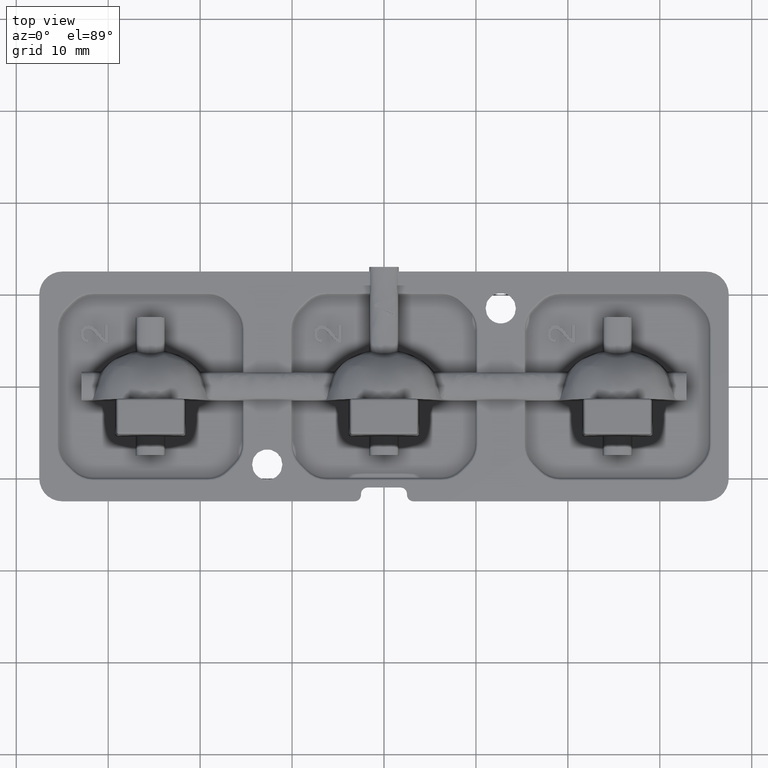
[diagram: clean part render]
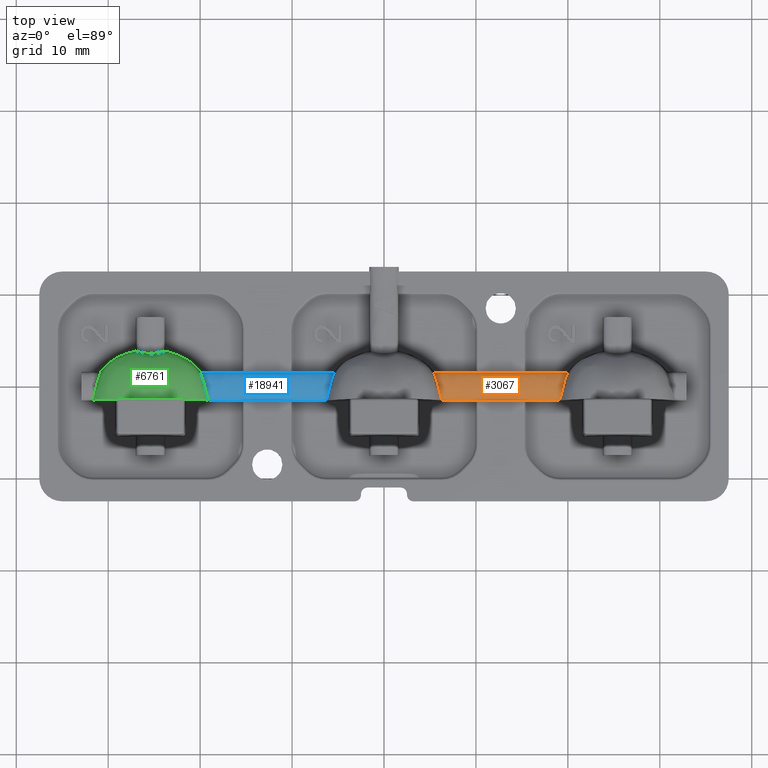
[diagram: same view with three faces highlighted in distinct colors, each labeled with its STEP entity id]
A machine part, top view with three faces highlighted in distinct colors.
Their STEP definitions:

[orange] entity #3067 — the highlighted face is a freeform B-spline surface patch.
#86 = VERTEX_POINT ( 'NONE', #2967 ) ;
#174 = DIRECTION ( 'NONE',  ( -1.000000000000000000, -0.0000000000000000000, -0.0000000000000000000 ) ) ;
#871 = CARTESIAN_POINT ( 'NONE',  ( 3.653922138680719900, 1.524601638501778400, 1.499999999999999600 ) ) ;
#887 = VERTEX_POINT ( 'NONE', #14251 ) ;
#947 = CARTESIAN_POINT ( 'NONE',  ( 19.65656536786151400, 0.5895181590230996700, 1.947486503973804300 ) ) ;
#1033 = ORIENTED_EDGE ( 'NONE', *, *, #1914, .T. ) ;
#1115 = EDGE_CURVE ( 'NONE', #9557, #11573, #5954, .T. ) ;
#1172 = CARTESIAN_POINT ( 'NONE',  ( 5.414469513541949800, 1.524601638501778400, 1.499999999999999600 ) ) ;
#1276 = DIRECTION ( 'NONE',  ( -1.000000000000000000, -0.0000000000000000000, -0.0000000000000000000 ) ) ;
#1289 = CARTESIAN_POINT ( 'NONE',  ( 5.964053167475407600, -0.2220048884489155000, 1.985488526488035500 ) ) ;
#1627 = VECTOR ( 'NONE', #5912, 1000.000000000000000 ) ;
#1680 = CARTESIAN_POINT ( 'NONE',  ( 15.15151733829874200, 1.524601638501772900, 1.499999999999999600 ) ) ;
#1805 = B_SPLINE_CURVE_WITH_KNOTS ( 'NONE', 3,
 ( #9960, #17349, #2459, #13026, #3973, #14518, #5504, #9940, #947, #11465, #2437, #13007, #3949, #14500, #5479, #16019, #7004, #17532, #8517, #19043 ),
 .UNSPECIFIED., .F., .F.,
 ( 4, 2, 2, 2, 2, 2, 2, 2, 2, 4 ),
 ( 0.0000000000000000000, 0.0002139943856301423600, 0.0004279887712602847200, 0.0008559775425205691100, 0.001283966313780853600, 0.001711955085041137800, 0.002567932627561706800, 0.002995921398821991000, 0.003209915784452133700, 0.003423910170082275600 ),
 .UNSPECIFIED. ) ;
#1914 = EDGE_CURVE ( 'NONE', #4106, #887, #16552, .T. ) ;
#1934 = VECTOR ( 'NONE', #1276, 1000.000000000000000 ) ;
#2282 = CARTESIAN_POINT ( 'NONE',  ( 3.750000000000000000, 1.524601638501778400, 1.499999999999999600 ) ) ;
#2391 = LINE ( 'NONE', #2282, #17949 ) ;
#2437 = CARTESIAN_POINT ( 'NONE',  ( 19.53961601237000100, 0.1849684196236254200, 1.981321568496105200 ) ) ;
#2459 = CARTESIAN_POINT ( 'NONE',  ( 19.97505224733269800, 1.458383871728608600, 1.626834290782926700 ) ) ;
#2783 = CARTESIAN_POINT ( 'NONE',  ( 6.116780467316360200, -0.9021937582455242800, 1.891220023313538100 ) ) ;
#2967 = CARTESIAN_POINT ( 'NONE',  ( 3.787130078820408300, -1.524601638501760200, 1.499999999999999600 ) ) ;
#2989 = ORIENTED_EDGE ( 'NONE', *, *, #14724, .F. ) ;
#3029 = EDGE_CURVE ( 'NONE', #10256, #5476, #17245, .T. ) ;
#3067 = ADVANCED_FACE ( 'NONE', ( #8753 ), #4547, .T. ) ;
#3117 = DIRECTION ( 'NONE',  ( -1.000000000000000000, 0.0000000000000000000, -0.0000000000000000000 ) ) ;
#3265 = CARTESIAN_POINT ( 'NONE',  ( 21.61286992117960500, -1.524601638501740900, 1.500000000000077700 ) ) ;
#3389 = CARTESIAN_POINT ( 'NONE',  ( 3.773666992456431700, -1.505274297071526500, 1.553152110517723500 ) ) ;
#3881 = CARTESIAN_POINT ( 'NONE',  ( 3.653922138680719900, 1.352055608433418300, 2.143950550859384600 ) ) ;
#3949 = CARTESIAN_POINT ( 'NONE',  ( 19.37679489031154000, -0.4951974929644437600, 1.967918489597050300 ) ) ;
#3968 = B_SPLINE_CURVE_WITH_KNOTS ( 'NONE', 3,
 ( #1172, #11752, #4249, #14790, #5777, #16312, #7295, #17818, #8793, #19321, #10292, #1289, #11813, #2783, #13358, #4311, #14856, #5835, #16379, #7359 ),
 .UNSPECIFIED., .F., .F.,
 ( 4, 2, 2, 2, 2, 2, 2, 2, 2, 4 ),
 ( 0.0000000000000000000, 0.0002139943720760033500, 0.0004279887441520066900, 0.0008559774883040126300, 0.001283966232456018500, 0.001711954976608024400, 0.002567932464912035300, 0.002995921209064041600, 0.003209915581140043900, 0.003423909953216046600 ),
 .UNSPECIFIED. ) ;
#3973 = CARTESIAN_POINT ( 'NONE',  ( 19.91256383863446500, 1.293915821677028800, 1.748309408361048900 ) ) ;
#4106 = VERTEX_POINT ( 'NONE', #5417 ) ;
#4191 = VECTOR ( 'NONE', #9744, 1000.000000000000000 ) ;
#4249 = CARTESIAN_POINT ( 'NONE',  ( 5.424948624773477100, 1.458383888776498400, 1.626834267193905800 ) ) ;
#4311 = CARTESIAN_POINT ( 'NONE',  ( 6.203213377940209700, -1.227710751850440200, 1.781236614138192100 ) ) ;
#4387 = VERTEX_POINT ( 'NONE', #9143 ) ;
#4547 = B_SPLINE_SURFACE_WITH_KNOTS ( 'NONE', 3, 1, ( 
 ( #871, #6874 ),
 ( #3881, #14426 ),
 ( #5408, #15944 ),
 ( #6936, #17458 ) ),
 .UNSPECIFIED., .F., .F., .F.,
 ( 4, 4 ),
 ( 2, 2 ),
 ( 0.0000000000000000000, 1.000000000000000000 ),
 ( 0.0000000000000000000, 1.000000000000000000 ),
 .UNSPECIFIED. ) ;
#4789 = CARTESIAN_POINT ( 'NONE',  ( 21.62633300750653800, -1.505274297119057600, 1.553152110548016200 ) ) ;
#4918 = CARTESIAN_POINT ( 'NONE',  ( 3.781797684177358800, -1.517096371113945400, 1.528010039215734700 ) ) ;
#5408 = CARTESIAN_POINT ( 'NONE',  ( 3.653922138680719900, -1.352055608433400100, 2.143950550859410300 ) ) ;
#5417 = CARTESIAN_POINT ( 'NONE',  ( 21.61286992117960500, -1.524601638501740900, 1.500000000000077700 ) ) ;
#5476 = VERTEX_POINT ( 'NONE', #10417 ) ;
#5479 = CARTESIAN_POINT ( 'NONE',  ( 19.25132031257472300, -1.037019171486277100, 1.857266239554109100 ) ) ;
#5504 = CARTESIAN_POINT ( 'NONE',  ( 19.79151932266119800, 0.9841393963611795300, 1.870239141411243800 ) ) ;
#5777 = CARTESIAN_POINT ( 'NONE',  ( 5.487437321359941200, 1.293915935721297000, 1.748309344732775800 ) ) ;
#5810 = VERTEX_POINT ( 'NONE', #18986 ) ;
#5835 = CARTESIAN_POINT ( 'NONE',  ( 6.265899244320362300, -1.403608291540709500, 1.676947497062739800 ) ) ;
#5912 = DIRECTION ( 'NONE',  ( -1.000000000000000000, 0.0000000000000000000, -0.0000000000000000000 ) ) ;
#5954 = LINE ( 'NONE', #8844, #1934 ) ;
#6616 = LINE ( 'NONE', #11891, #1627 ) ;
#6808 = CARTESIAN_POINT ( 'NONE',  ( 10.24848266170126500, -1.524601638501769300, 1.499999999999999800 ) ) ;
#6874 = CARTESIAN_POINT ( 'NONE',  ( 21.74607786131933200, 1.524601638501778400, 1.499999999999999600 ) ) ;
#6936 = CARTESIAN_POINT ( 'NONE',  ( 3.653922138680719900, -1.524601638501767100, 1.499999999999996200 ) ) ;
#7004 = CARTESIAN_POINT ( 'NONE',  ( 19.17722850351422900, -1.290070179759911000, 1.751292583161140100 ) ) ;
#7070 = VERTEX_POINT ( 'NONE', #1680 ) ;
#7180 = LINE ( 'NONE', #16173, #10215 ) ;
#7295 = CARTESIAN_POINT ( 'NONE',  ( 5.608482213186751300, 0.9841396524413038600, 1.870239069585320200 ) ) ;
#7359 = CARTESIAN_POINT ( 'NONE',  ( 6.316275789860277700, -1.491086363426563600, 1.575758493744677100 ) ) ;
#7662 = LINE ( 'NONE', #12143, #15194 ) ;
#7910 = CARTESIAN_POINT ( 'NONE',  ( 3.761187884071860200, -1.491086363426563600, 1.575758493744677100 ) ) ;
#8147 = EDGE_CURVE ( 'NONE', #5810, #887, #8205, .T. ) ;
#8205 = LINE ( 'NONE', #15813, #4191 ) ;
#8517 = CARTESIAN_POINT ( 'NONE',  ( 19.11006068101268700, -1.455726409393350200, 1.632099373868087100 ) ) ;
#8536 = ORIENTED_EDGE ( 'NONE', *, *, #3029, .T. ) ;
#8753 = FACE_OUTER_BOUND ( 'NONE', #11291, .T. ) ;
#8793 = CARTESIAN_POINT ( 'NONE',  ( 5.743436392226406900, 0.5895185313647370900, 1.947486454590498400 ) ) ;
#8844 = CARTESIAN_POINT ( 'NONE',  ( 18.19999999999999900, -1.524601638501770200, 1.499999999999996200 ) ) ;
#9143 = CARTESIAN_POINT ( 'NONE',  ( 19.98553113320984700, 1.524601638501756000, 1.500000000000001300 ) ) ;
#9352 = ORIENTED_EDGE ( 'NONE', *, *, #18425, .T. ) ;
#9557 = VERTEX_POINT ( 'NONE', #12004 ) ;
#9740 = CARTESIAN_POINT ( 'NONE',  ( 6.316275789860277700, -1.491086363426563600, 1.575758493744677100 ) ) ;
#9744 = DIRECTION ( 'NONE',  ( 1.000000000000000000, -0.0000000000000000000, 0.0000000000000000000 ) ) ;
#9940 = CARTESIAN_POINT ( 'NONE',  ( 19.69996300319656900, 0.7237318960017827800, 1.927655294654934300 ) ) ;
#9960 = CARTESIAN_POINT ( 'NONE',  ( 19.98553113320984700, 1.524601638501756000, 1.500000000000001300 ) ) ;
#10116 = ORIENTED_EDGE ( 'NONE', *, *, #10363, .T. ) ;
#10148 = VERTEX_POINT ( 'NONE', #18383 ) ;
#10215 = VECTOR ( 'NONE', #17681, 1000.000000000000000 ) ;
#10256 = VERTEX_POINT ( 'NONE', #16653 ) ;
#10292 = CARTESIAN_POINT ( 'NONE',  ( 5.860385738222452000, 0.1849687869180197400, 1.981321554772345500 ) ) ;
#10356 = LINE ( 'NONE', #18232, #13906 ) ;
#10363 = EDGE_CURVE ( 'NONE', #5476, #86, #12952, .T. ) ;
#10417 = CARTESIAN_POINT ( 'NONE',  ( 3.761187884071860200, -1.491086363426563600, 1.575758493744677100 ) ) ;
#10438 = CARTESIAN_POINT ( 'NONE',  ( 10.24848266170126500, 1.524601638501772900, 1.499999999999999600 ) ) ;
#10735 = EDGE_CURVE ( 'NONE', #4106, #9557, #7662, .T. ) ;
#11291 = EDGE_LOOP ( 'NONE', ( #12054, #14053, #16383, #1033, #18968, #2989, #15788, #17596, #11964, #9352, #8536, #10116 ) ) ;
#11465 = CARTESIAN_POINT ( 'NONE',  ( 19.57646703969149400, 0.3202222892640367900, 1.974329617557848600 ) ) ;
#11573 = VERTEX_POINT ( 'NONE', #6808 ) ;
#11752 = CARTESIAN_POINT ( 'NONE',  ( 5.409784369708869000, 1.505872409881255900, 1.569898432798357800 ) ) ;
#11813 = CARTESIAN_POINT ( 'NONE',  ( 6.023206354770724000, -0.4951972257385914300, 1.967918522145420500 ) ) ;
#11891 = CARTESIAN_POINT ( 'NONE',  ( 21.64999999999999900, 1.524601638501756000, 1.500000000000001300 ) ) ;
#11964 = ORIENTED_EDGE ( 'NONE', *, *, #14979, .F. ) ;
#12004 = CARTESIAN_POINT ( 'NONE',  ( 15.15151733829874200, -1.524601638501769300, 1.499999999999999800 ) ) ;
#12054 = ORIENTED_EDGE ( 'NONE', *, *, #13402, .T. ) ;
#12143 = CARTESIAN_POINT ( 'NONE',  ( 21.64999999999999900, -1.524601638501740900, 1.500000000000077700 ) ) ;
#12303 = CARTESIAN_POINT ( 'NONE',  ( 21.61820231582328200, -1.517096371113072300, 1.528010039219618100 ) ) ;
#12853 = DIRECTION ( 'NONE',  ( 1.000000000000000000, 0.0000000000000000000, 0.0000000000000000000 ) ) ;
#12952 = B_SPLINE_CURVE_WITH_KNOTS ( 'NONE', 3,
 ( #7910, #3389, #4918, #15457 ),
 .UNSPECIFIED., .F., .F.,
 ( 4, 4 ),
 ( 1.091485052657850200E-014, 8.680795187133092700E-005 ),
 .UNSPECIFIED. ) ;
#13007 = CARTESIAN_POINT ( 'NONE',  ( 19.43594837415427900, -0.2220052136313302700, 1.985488509892516800 ) ) ;
#13026 = CARTESIAN_POINT ( 'NONE',  ( 19.93617244576676500, 1.352512862672114100, 1.715119931344462900 ) ) ;
#13358 = CARTESIAN_POINT ( 'NONE',  ( 6.148680177436049600, -1.037019048745244600, 1.857266279423572600 ) ) ;
#13402 = EDGE_CURVE ( 'NONE', #86, #11573, #7180, .T. ) ;
#13702 = VECTOR ( 'NONE', #18842, 1000.000000000000000 ) ;
#13906 = VECTOR ( 'NONE', #174, 1000.000000000000000 ) ;
#14053 = ORIENTED_EDGE ( 'NONE', *, *, #1115, .F. ) ;
#14251 = CARTESIAN_POINT ( 'NONE',  ( 21.63881211592819300, -1.491086363426100200, 1.575758493757720500 ) ) ;
#14426 = CARTESIAN_POINT ( 'NONE',  ( 21.74607786131933200, 1.352055608433418300, 2.143950550859384600 ) ) ;
#14500 = CARTESIAN_POINT ( 'NONE',  ( 19.28322022596803400, -0.9021939125982897400, 1.891219985321763500 ) ) ;
#14518 = CARTESIAN_POINT ( 'NONE',  ( 19.84029818834991200, 1.111227689894713500, 1.833885583468202000 ) ) ;
#14724 = EDGE_CURVE ( 'NONE', #4387, #5810, #1805, .T. ) ;
#14790 = CARTESIAN_POINT ( 'NONE',  ( 5.463828628831289600, 1.352512933043093800, 1.715119882035176100 ) ) ;
#14856 = CARTESIAN_POINT ( 'NONE',  ( 6.222771635474574100, -1.290070139159798000, 1.751292606104908600 ) ) ;
#14979 = EDGE_CURVE ( 'NONE', #10148, #16266, #2391, .T. ) ;
#15194 = VECTOR ( 'NONE', #3117, 1000.000000000000000 ) ;
#15328 = CARTESIAN_POINT ( 'NONE',  ( 21.63881211592819300, -1.491086363426100200, 1.575758493757720500 ) ) ;
#15457 = CARTESIAN_POINT ( 'NONE',  ( 3.787130078820408300, -1.524601638501760200, 1.499999999999999600 ) ) ;
#15788 = ORIENTED_EDGE ( 'NONE', *, *, #16648, .T. ) ;
#15813 = CARTESIAN_POINT ( 'NONE',  ( 21.58177077738795200, -1.491086363426100200, 1.575758493757720500 ) ) ;
#15944 = CARTESIAN_POINT ( 'NONE',  ( 21.74607786131933200, -1.352055608433400100, 2.143950550859410300 ) ) ;
#16019 = CARTESIAN_POINT ( 'NONE',  ( 19.19678684493336400, -1.227710812401518100, 1.781236585463698900 ) ) ;
#16173 = CARTESIAN_POINT ( 'NONE',  ( 3.750000000000000000, -1.524601638501760200, 1.499999999999999600 ) ) ;
#16266 = VERTEX_POINT ( 'NONE', #10438 ) ;
#16312 = CARTESIAN_POINT ( 'NONE',  ( 5.559703220899822700, 1.111227890628435000, 1.833885509852675800 ) ) ;
#16365 = EDGE_CURVE ( 'NONE', #7070, #16266, #10356, .T. ) ;
#16379 = CARTESIAN_POINT ( 'NONE',  ( 6.289939267016605700, -1.455726406299300300, 1.632099378796961100 ) ) ;
#16383 = ORIENTED_EDGE ( 'NONE', *, *, #10735, .F. ) ;
#16552 = B_SPLINE_CURVE_WITH_KNOTS ( 'NONE', 3,
 ( #3265, #12303, #4789, #15328 ),
 .UNSPECIFIED., .F., .F.,
 ( 4, 4 ),
 ( 0.0000000000000000000, 8.680795187191260100E-005 ),
 .UNSPECIFIED. ) ;
#16648 = EDGE_CURVE ( 'NONE', #4387, #7070, #6616, .T. ) ;
#16653 = CARTESIAN_POINT ( 'NONE',  ( 6.316275789860277700, -1.491086363426563600, 1.575758493744677100 ) ) ;
#17245 = LINE ( 'NONE', #9740, #13702 ) ;
#17349 = CARTESIAN_POINT ( 'NONE',  ( 19.99021638430014400, 1.505872411085102700, 1.569898428305462400 ) ) ;
#17458 = CARTESIAN_POINT ( 'NONE',  ( 21.74607786131933200, -1.524601638501767100, 1.499999999999996200 ) ) ;
#17532 = CARTESIAN_POINT ( 'NONE',  ( 19.13410075598085000, -1.403608306006736400, 1.676947483951114000 ) ) ;
#17596 = ORIENTED_EDGE ( 'NONE', *, *, #16365, .T. ) ;
#17681 = DIRECTION ( 'NONE',  ( 1.000000000000000000, 0.0000000000000000000, 0.0000000000000000000 ) ) ;
#17818 = CARTESIAN_POINT ( 'NONE',  ( 5.700038708036889700, 0.7237322390370275500, 1.927655234384315400 ) ) ;
#17949 = VECTOR ( 'NONE', #12853, 1000.000000000000000 ) ;
#18232 = CARTESIAN_POINT ( 'NONE',  ( 18.19999999999999900, 1.524601638501772900, 1.499999999999999600 ) ) ;
#18383 = CARTESIAN_POINT ( 'NONE',  ( 5.414469513541949800, 1.524601638501778400, 1.499999999999999600 ) ) ;
#18425 = EDGE_CURVE ( 'NONE', #10148, #10256, #3968, .T. ) ;
#18842 = DIRECTION ( 'NONE',  ( -1.000000000000000000, -0.0000000000000000000, -0.0000000000000000000 ) ) ;
#18968 = ORIENTED_EDGE ( 'NONE', *, *, #8147, .F. ) ;
#18986 = CARTESIAN_POINT ( 'NONE',  ( 19.08372413429644600, -1.491086363426523500, 1.575758493745534000 ) ) ;
#19043 = CARTESIAN_POINT ( 'NONE',  ( 19.08372413429644600, -1.491086363426523500, 1.575758493745534000 ) ) ;
#19321 = CARTESIAN_POINT ( 'NONE',  ( 5.823534742817433800, 0.3202226634157145400, 1.974329592531104800 ) ) ;

[blue] entity #18941 — the highlighted face is a freeform B-spline surface patch.
#44 = VERTEX_POINT ( 'NONE', #2837 ) ;
#196 = CARTESIAN_POINT ( 'NONE',  ( -5.559701811650086300, 1.111227689894708200, 1.833885583468201500 ) ) ;
#263 = CARTESIAN_POINT ( 'NONE',  ( -6.289939318987311600, -1.455726409393355300, 1.632099373868087800 ) ) ;
#468 = VERTEX_POINT ( 'NONE', #19501 ) ;
#544 = EDGE_CURVE ( 'NONE', #7188, #10452, #8107, .T. ) ;
#938 = CARTESIAN_POINT ( 'NONE',  ( -19.53961426177754400, 0.1849687869180152200, 1.981321554772344600 ) ) ;
#987 = B_SPLINE_CURVE_WITH_KNOTS ( 'NONE', 3,
 ( #18944, #3854, #15983, #6968 ),
 .UNSPECIFIED., .F., .F.,
 ( 4, 4 ),
 ( 0.0000000000000000000, 8.680795187191299400E-005 ),
 .UNSPECIFIED. ) ;
#1575 = CARTESIAN_POINT ( 'NONE',  ( -3.653922138680668000, 1.352055608433412500, 2.143950550859384600 ) ) ;
#1630 = CARTESIAN_POINT ( 'NONE',  ( -19.98553048645805000, 1.524601638501772700, 1.499999999999999600 ) ) ;
#1647 = CARTESIAN_POINT ( 'NONE',  ( -5.409783615699858200, 1.505872411085097600, 1.569898428305462400 ) ) ;
#1689 = B_SPLINE_CURVE_WITH_KNOTS ( 'NONE', 3,
 ( #18469, #7948, #1922, #12478 ),
 .UNSPECIFIED., .F., .F.,
 ( 4, 4 ),
 ( 1.091472093641729700E-014, 8.680795187133053400E-005 ),
 .UNSPECIFIED. ) ;
#1715 = CARTESIAN_POINT ( 'NONE',  ( -5.700036996803437900, 0.7237318960017774500, 1.927655294654934600 ) ) ;
#1858 = EDGE_CURVE ( 'NONE', #44, #7735, #15858, .T. ) ;
#1865 = CARTESIAN_POINT ( 'NONE',  ( -3.750000000000000000, 1.524601638501750700, 1.500000000000001300 ) ) ;
#1922 = CARTESIAN_POINT ( 'NONE',  ( -21.61820231582264300, -1.517096371113951100, 1.528010039215734500 ) ) ;
#2310 = VECTOR ( 'NONE', #15188, 1000.000000000000000 ) ;
#2366 = CARTESIAN_POINT ( 'NONE',  ( -19.98553048645805000, 1.524601638501772700, 1.499999999999999600 ) ) ;
#2429 = CARTESIAN_POINT ( 'NONE',  ( -19.37679364522928100, -0.4951972257385968100, 1.967918522145420500 ) ) ;
#2545 = VECTOR ( 'NONE', #9987, 1000.000000000000000 ) ;
#2773 = LINE ( 'NONE', #9176, #2310 ) ;
#2837 = CARTESIAN_POINT ( 'NONE',  ( -6.316275865703553400, -1.491086363426528800, 1.575758493745534000 ) ) ;
#3055 = VECTOR ( 'NONE', #14128, 1000.000000000000000 ) ;
#3080 = CARTESIAN_POINT ( 'NONE',  ( -3.653922138680668000, -1.352055608433405700, 2.143950550859410300 ) ) ;
#3113 = CARTESIAN_POINT ( 'NONE',  ( -21.64999999999999900, -1.524601638501765800, 1.499999999999999600 ) ) ;
#3228 = CARTESIAN_POINT ( 'NONE',  ( -5.823532960308506600, 0.3202222892640309600, 1.974329617557848600 ) ) ;
#3299 = VERTEX_POINT ( 'NONE', #7516 ) ;
#3403 = DIRECTION ( 'NONE',  ( -1.000000000000000000, -0.0000000000000000000, -0.0000000000000000000 ) ) ;
#3559 = EDGE_CURVE ( 'NONE', #6031, #10452, #7107, .T. ) ;
#3854 = CARTESIAN_POINT ( 'NONE',  ( -3.781797684176716200, -1.517096371113077600, 1.528010039219618300 ) ) ;
#3942 = CARTESIAN_POINT ( 'NONE',  ( -19.25131982256394300, -1.037019048745249300, 1.857266279423573000 ) ) ;
#4541 = CARTESIAN_POINT ( 'NONE',  ( -3.653922138680668000, 1.524601638501772700, 1.499999999999999600 ) ) ;
#4609 = CARTESIAN_POINT ( 'NONE',  ( -3.653922138680668000, -1.524601638501772700, 1.499999999999996200 ) ) ;
#4752 = CARTESIAN_POINT ( 'NONE',  ( -5.964051625845725000, -0.2220052136313359600, 1.985488509892516800 ) ) ;
#4821 = B_SPLINE_CURVE_WITH_KNOTS ( 'NONE', 3,
 ( #2366, #11326, #14423, #5403, #15942, #6934, #17454, #8445, #18970, #9932, #938, #11455, #2429, #12999, #3942, #14489, #5473, #16011, #6992, #17523 ),
 .UNSPECIFIED., .F., .F.,
 ( 4, 2, 2, 2, 2, 2, 2, 2, 2, 4 ),
 ( 0.0000000000000000000, 0.0002139943720760010400, 0.0004279887441520020900, 0.0008559774883040079700, 0.001283966232456014000, 0.001711954976608019800, 0.002567932464912031800, 0.002995921209064039000, 0.003209915581140042600, 0.003423909953216045700 ),
 .UNSPECIFIED. ) ;
#5137 = EDGE_CURVE ( 'NONE', #15259, #44, #8109, .T. ) ;
#5181 = VERTEX_POINT ( 'NONE', #18458 ) ;
#5403 = CARTESIAN_POINT ( 'NONE',  ( -19.93617137116870800, 1.352512933043086300, 1.715119882035177400 ) ) ;
#5473 = CARTESIAN_POINT ( 'NONE',  ( -19.17722836452542600, -1.290070139159802000, 1.751292606104908600 ) ) ;
#6031 = VERTEX_POINT ( 'NONE', #12394 ) ;
#6220 = CARTESIAN_POINT ( 'NONE',  ( -5.414468866790151900, 1.524601638501750700, 1.500000000000001300 ) ) ;
#6287 = CARTESIAN_POINT ( 'NONE',  ( -6.116779774031973800, -0.9021939125982941800, 1.891219985321763700 ) ) ;
#6934 = CARTESIAN_POINT ( 'NONE',  ( -19.84029677910017900, 1.111227890628429900, 1.833885509852674500 ) ) ;
#6968 = CARTESIAN_POINT ( 'NONE',  ( -3.761187884071804700, -1.491086363426105600, 1.575758493757720500 ) ) ;
#6989 = VERTEX_POINT ( 'NONE', #15064 ) ;
#6992 = CARTESIAN_POINT ( 'NONE',  ( -19.11006073298339600, -1.455726406299304300, 1.632099378796962900 ) ) ;
#7107 = LINE ( 'NONE', #18622, #3055 ) ;
#7188 = VERTEX_POINT ( 'NONE', #17166 ) ;
#7516 = CARTESIAN_POINT ( 'NONE',  ( -15.15151733829873800, 1.524601638501745300, 1.499999999999999800 ) ) ;
#7552 = ORIENTED_EDGE ( 'NONE', *, *, #11649, .T. ) ;
#7598 = EDGE_CURVE ( 'NONE', #468, #3299, #2773, .T. ) ;
#7729 = CARTESIAN_POINT ( 'NONE',  ( -5.424947752667286200, 1.458383871728602000, 1.626834290782927200 ) ) ;
#7735 = VERTEX_POINT ( 'NONE', #10944 ) ;
#7807 = CARTESIAN_POINT ( 'NONE',  ( -6.203213155066635800, -1.227710812401522800, 1.781236585463700000 ) ) ;
#7942 = CARTESIAN_POINT ( 'NONE',  ( -3.787130078820394100, -1.524601638501746200, 1.500000000000077700 ) ) ;
#7948 = CARTESIAN_POINT ( 'NONE',  ( -21.62633300754356800, -1.505274297071532000, 1.553152110517723500 ) ) ;
#7953 = LINE ( 'NONE', #12446, #15473 ) ;
#8064 = VERTEX_POINT ( 'NONE', #7942 ) ;
#8107 = LINE ( 'NONE', #3113, #9029 ) ;
#8109 = B_SPLINE_CURVE_WITH_KNOTS ( 'NONE', 3,
 ( #6220, #1647, #7729, #18257, #9222, #196, #10732, #1715, #12259, #3228, #13775, #4752, #15294, #6287, #16821, #7807, #18326, #9289, #263, #10796 ),
 .UNSPECIFIED., .F., .F.,
 ( 4, 2, 2, 2, 2, 2, 2, 2, 2, 4 ),
 ( 0.0000000000000000000, 0.0002139943856301414900, 0.0004279887712602829800, 0.0008559775425205677000, 0.001283966313780852100, 0.001711955085041136500, 0.002567932627561705500, 0.002995921398821990500, 0.003209915784452133300, 0.003423910170082276000 ),
 .UNSPECIFIED. ) ;
#8231 = CARTESIAN_POINT ( 'NONE',  ( -3.750000000000000000, -1.524601638501746200, 1.500000000000077700 ) ) ;
#8445 = CARTESIAN_POINT ( 'NONE',  ( -19.69996129196311700, 0.7237322390370224400, 1.927655234384315400 ) ) ;
#8687 = B_SPLINE_SURFACE_WITH_KNOTS ( 'NONE', 3, 1, ( 
 ( #9087, #4541 ),
 ( #10586, #1575 ),
 ( #12119, #3080 ),
 ( #13633, #4609 ) ),
 .UNSPECIFIED., .F., .F., .F.,
 ( 4, 4 ),
 ( 2, 2 ),
 ( 0.0000000000000000000, 1.000000000000000000 ),
 ( 0.0000000000000000000, 1.000000000000000000 ),
 .UNSPECIFIED. ) ;
#9029 = VECTOR ( 'NONE', #12082, 1000.000000000000000 ) ;
#9087 = CARTESIAN_POINT ( 'NONE',  ( -21.74607786131927900, 1.524601638501772700, 1.499999999999999600 ) ) ;
#9176 = CARTESIAN_POINT ( 'NONE',  ( -7.200000000000002000, 1.524601638501744900, 1.500000000000001300 ) ) ;
#9189 = EDGE_CURVE ( 'NONE', #5181, #6989, #7953, .T. ) ;
#9222 = CARTESIAN_POINT ( 'NONE',  ( -5.487436161365534000, 1.293915821677022600, 1.748309408361049100 ) ) ;
#9284 = EDGE_CURVE ( 'NONE', #8064, #6031, #18532, .T. ) ;
#9289 = CARTESIAN_POINT ( 'NONE',  ( -6.265899244019149900, -1.403608306006743200, 1.676947483951112900 ) ) ;
#9526 = ORIENTED_EDGE ( 'NONE', *, *, #7598, .T. ) ;
#9577 = CARTESIAN_POINT ( 'NONE',  ( -15.15151733829873800, -1.524601638501771100, 1.499999999999999800 ) ) ;
#9673 = LINE ( 'NONE', #1865, #17238 ) ;
#9860 = ORIENTED_EDGE ( 'NONE', *, *, #18526, .T. ) ;
#9932 = CARTESIAN_POINT ( 'NONE',  ( -19.57646525718257300, 0.3202226634157083800, 1.974329592531106600 ) ) ;
#9987 = DIRECTION ( 'NONE',  ( 1.000000000000000000, 0.0000000000000000000, 0.0000000000000000000 ) ) ;
#10011 = EDGE_LOOP ( 'NONE', ( #15533, #10418, #15039, #18281, #15106, #11419, #14172, #9526, #18743, #7552, #13672, #9860 ) ) ;
#10418 = ORIENTED_EDGE ( 'NONE', *, *, #3559, .F. ) ;
#10452 = VERTEX_POINT ( 'NONE', #9577 ) ;
#10532 = EDGE_CURVE ( 'NONE', #8064, #7735, #987, .T. ) ;
#10586 = CARTESIAN_POINT ( 'NONE',  ( -21.74607786131927900, 1.352055608433412500, 2.143950550859384600 ) ) ;
#10732 = CARTESIAN_POINT ( 'NONE',  ( -5.608480677338803000, 0.9841393963611743100, 1.870239141411243800 ) ) ;
#10796 = CARTESIAN_POINT ( 'NONE',  ( -6.316275865703553400, -1.491086363426528800, 1.575758493745534000 ) ) ;
#10944 = CARTESIAN_POINT ( 'NONE',  ( -3.761187884071804700, -1.491086363426105600, 1.575758493757720500 ) ) ;
#11326 = CARTESIAN_POINT ( 'NONE',  ( -19.99021563029113200, 1.505872409881250400, 1.569898432798358300 ) ) ;
#11419 = ORIENTED_EDGE ( 'NONE', *, *, #5137, .F. ) ;
#11455 = CARTESIAN_POINT ( 'NONE',  ( -19.43594683252460000, -0.2220048884489207500, 1.985488526488036000 ) ) ;
#11649 = EDGE_CURVE ( 'NONE', #17512, #5181, #4821, .T. ) ;
#11838 = VECTOR ( 'NONE', #12230, 1000.000000000000000 ) ;
#12082 = DIRECTION ( 'NONE',  ( 1.000000000000000000, 0.0000000000000000000, 0.0000000000000000000 ) ) ;
#12119 = CARTESIAN_POINT ( 'NONE',  ( -21.74607786131927900, -1.352055608433405700, 2.143950550859410300 ) ) ;
#12230 = DIRECTION ( 'NONE',  ( 1.000000000000000000, -0.0000000000000000000, 0.0000000000000000000 ) ) ;
#12259 = CARTESIAN_POINT ( 'NONE',  ( -5.743434632138487000, 0.5895181590230943500, 1.947486503973803900 ) ) ;
#12394 = CARTESIAN_POINT ( 'NONE',  ( -10.24848266170126500, -1.524601638501771100, 1.499999999999999800 ) ) ;
#12446 = CARTESIAN_POINT ( 'NONE',  ( -19.08372421013972100, -1.491086363426569200, 1.575758493744677100 ) ) ;
#12478 = CARTESIAN_POINT ( 'NONE',  ( -21.61286992117959100, -1.524601638501765800, 1.499999999999999600 ) ) ;
#12784 = DIRECTION ( 'NONE',  ( -1.000000000000000000, 0.0000000000000000000, -0.0000000000000000000 ) ) ;
#12999 = CARTESIAN_POINT ( 'NONE',  ( -19.28321953268364600, -0.9021937582455309400, 1.891220023313538800 ) ) ;
#13380 = FACE_OUTER_BOUND ( 'NONE', #10011, .T. ) ;
#13633 = CARTESIAN_POINT ( 'NONE',  ( -21.74607786131927900, -1.524601638501772700, 1.499999999999996200 ) ) ;
#13672 = ORIENTED_EDGE ( 'NONE', *, *, #9189, .T. ) ;
#13775 = CARTESIAN_POINT ( 'NONE',  ( -5.860383987630001500, 0.1849684196236200100, 1.981321568496105200 ) ) ;
#14128 = DIRECTION ( 'NONE',  ( -1.000000000000000000, -0.0000000000000000000, -0.0000000000000000000 ) ) ;
#14172 = ORIENTED_EDGE ( 'NONE', *, *, #15407, .T. ) ;
#14423 = CARTESIAN_POINT ( 'NONE',  ( -19.97505137522652100, 1.458383888776491500, 1.626834267193907100 ) ) ;
#14489 = CARTESIAN_POINT ( 'NONE',  ( -19.19678662205979000, -1.227710751850444900, 1.781236614138192800 ) ) ;
#15039 = ORIENTED_EDGE ( 'NONE', *, *, #9284, .F. ) ;
#15056 = CARTESIAN_POINT ( 'NONE',  ( -5.414468866790151900, 1.524601638501750700, 1.500000000000001300 ) ) ;
#15064 = CARTESIAN_POINT ( 'NONE',  ( -21.63881211592814000, -1.491086363426569200, 1.575758493744677100 ) ) ;
#15106 = ORIENTED_EDGE ( 'NONE', *, *, #1858, .F. ) ;
#15188 = DIRECTION ( 'NONE',  ( -1.000000000000000000, -0.0000000000000000000, -0.0000000000000000000 ) ) ;
#15259 = VERTEX_POINT ( 'NONE', #15056 ) ;
#15294 = CARTESIAN_POINT ( 'NONE',  ( -6.023205109688462700, -0.4951974929644500400, 1.967918489597050300 ) ) ;
#15407 = EDGE_CURVE ( 'NONE', #15259, #468, #9673, .T. ) ;
#15447 = DIRECTION ( 'NONE',  ( -1.000000000000000000, 0.0000000000000000000, -0.0000000000000000000 ) ) ;
#15473 = VECTOR ( 'NONE', #3403, 1000.000000000000000 ) ;
#15533 = ORIENTED_EDGE ( 'NONE', *, *, #544, .T. ) ;
#15858 = LINE ( 'NONE', #16724, #11838 ) ;
#15942 = CARTESIAN_POINT ( 'NONE',  ( -19.91256267864005400, 1.293915935721291500, 1.748309344732774200 ) ) ;
#15983 = CARTESIAN_POINT ( 'NONE',  ( -3.773666992493459800, -1.505274297119063100, 1.553152110548015900 ) ) ;
#16011 = CARTESIAN_POINT ( 'NONE',  ( -19.13410075567963600, -1.403608291540714000, 1.676947497062740000 ) ) ;
#16724 = CARTESIAN_POINT ( 'NONE',  ( -3.818229222612046200, -1.491086363426105600, 1.575758493757720500 ) ) ;
#16821 = CARTESIAN_POINT ( 'NONE',  ( -6.148679687425284300, -1.037019171486279800, 1.857266239554110200 ) ) ;
#17166 = CARTESIAN_POINT ( 'NONE',  ( -21.61286992117959100, -1.524601638501765800, 1.499999999999999600 ) ) ;
#17238 = VECTOR ( 'NONE', #15447, 1000.000000000000000 ) ;
#17454 = CARTESIAN_POINT ( 'NONE',  ( -19.79151778681324500, 0.9841396524412997500, 1.870239069585319700 ) ) ;
#17511 = CARTESIAN_POINT ( 'NONE',  ( -21.64999999999999900, 1.524601638501772700, 1.499999999999999600 ) ) ;
#17512 = VERTEX_POINT ( 'NONE', #1630 ) ;
#17523 = CARTESIAN_POINT ( 'NONE',  ( -19.08372421013972100, -1.491086363426569200, 1.575758493744677100 ) ) ;
#17852 = EDGE_CURVE ( 'NONE', #17512, #3299, #18101, .T. ) ;
#18057 = VECTOR ( 'NONE', #12784, 1000.000000000000000 ) ;
#18101 = LINE ( 'NONE', #17511, #2545 ) ;
#18257 = CARTESIAN_POINT ( 'NONE',  ( -5.463827554233224000, 1.352512862672107900, 1.715119931344462900 ) ) ;
#18281 = ORIENTED_EDGE ( 'NONE', *, *, #10532, .T. ) ;
#18326 = CARTESIAN_POINT ( 'NONE',  ( -6.222771496485774100, -1.290070179759917700, 1.751292583161138300 ) ) ;
#18458 = CARTESIAN_POINT ( 'NONE',  ( -19.08372421013972100, -1.491086363426569200, 1.575758493744677100 ) ) ;
#18469 = CARTESIAN_POINT ( 'NONE',  ( -21.63881211592814000, -1.491086363426569200, 1.575758493744677100 ) ) ;
#18526 = EDGE_CURVE ( 'NONE', #6989, #7188, #1689, .T. ) ;
#18532 = LINE ( 'NONE', #8231, #18057 ) ;
#18622 = CARTESIAN_POINT ( 'NONE',  ( -7.200000000000002000, -1.524601638501752000, 1.500000000000072400 ) ) ;
#18743 = ORIENTED_EDGE ( 'NONE', *, *, #17852, .F. ) ;
#18941 = ADVANCED_FACE ( 'NONE', ( #13380 ), #8687, .T. ) ;
#18944 = CARTESIAN_POINT ( 'NONE',  ( -3.787130078820394100, -1.524601638501746200, 1.500000000000077700 ) ) ;
#18970 = CARTESIAN_POINT ( 'NONE',  ( -19.65656360777359900, 0.5895185313647308700, 1.947486454590500200 ) ) ;
#19501 = CARTESIAN_POINT ( 'NONE',  ( -10.24848266170126500, 1.524601638501745600, 1.499999999999999800 ) ) ;

[green] entity #6761 — the highlighted face is a freeform B-spline surface patch.
#2 = CARTESIAN_POINT ( 'NONE',  ( -24.89395894191125800, 3.624242165508516400, 2.027821992209605500 ) ) ;
#67 = CARTESIAN_POINT ( 'NONE',  ( -24.91992680020177900, 3.948942922644111100, 1.398462165185068400 ) ) ;
#68 = CARTESIAN_POINT ( 'NONE',  ( -23.87539836149823500, 3.821385603054491900, 1.499999999999999600 ) ) ;
#120 = CARTESIAN_POINT ( 'NONE',  ( -24.95755852246159600, 4.000000000000003600, 1.151102993158579000 ) ) ;
#182 = CARTESIAN_POINT ( 'NONE',  ( -20.49296896323434700, -1.523727999071460100, 3.302194578899682900 ) ) ;
#250 = CARTESIAN_POINT ( 'NONE',  ( -19.71399409207196000, -1.484507391802468500, 2.598796270624429600 ) ) ;
#284 = CARTESIAN_POINT ( 'NONE',  ( -26.97803417895815800, 3.848237607877717600, 1.300587044239275100 ) ) ;
#317 = CARTESIAN_POINT ( 'NONE',  ( -19.09551381742610600, -1.442975859861292500, 1.741685539818849100 ) ) ;
#381 = CARTESIAN_POINT ( 'NONE',  ( -28.78907229201933800, 3.267213395043461900, 1.200000000000000200 ) ) ;
#474 = B_SPLINE_CURVE_WITH_KNOTS ( 'NONE', 3,
 ( #13973, #6433, #15499, #6499 ),
 .UNSPECIFIED., .F., .F.,
 ( 4, 4 ),
 ( 7.197199990208277700E-015, 3.151128537260655100E-005 ),
 .UNSPECIFIED. ) ;
#494 = CARTESIAN_POINT ( 'NONE',  ( -31.71627586570355100, -1.491086363426534600, 1.575758493745534000 ) ) ;
#607 = EDGE_CURVE ( 'NONE', #15000, #10564, #8235, .T. ) ;
#614 = CARTESIAN_POINT ( 'NONE',  ( -19.49315379346195000, -1.466551418009365500, 2.278347404995457300 ) ) ;
#662 = CARTESIAN_POINT ( 'NONE',  ( -18.89999999999999900, -1.399999999999998600, 1.050309705888033100 ) ) ;
#736 = CARTESIAN_POINT ( 'NONE',  ( -18.94720936065497300, -0.8603945385336486700, 0.6999999999999992900 ) ) ;
#791 = EDGE_CURVE ( 'NONE', #13368, #1460, #17776, .T. ) ;
#882 = CARTESIAN_POINT ( 'NONE',  ( -31.90764704947929400, -1.486336873834613700, 1.051284709645885100 ) ) ;
#938 = CARTESIAN_POINT ( 'NONE',  ( -19.53961426177754400, 0.1849687869180152200, 1.981321554772344600 ) ) ;
#953 = CARTESIAN_POINT ( 'NONE',  ( -31.70448352421854900, -1.442975859861292500, 1.741692411860271200 ) ) ;
#1022 = CARTESIAN_POINT ( 'NONE',  ( -31.08582097347562000, -1.399999999999998600, 2.601743972022247500 ) ) ;
#1030 = EDGE_CURVE ( 'NONE', #2018, #4409, #4834, .T. ) ;
#1061 = CARTESIAN_POINT ( 'NONE',  ( -30.81843654579932600, 1.604986396231113100, 1.199999999999999700 ) ) ;
#1081 = CARTESIAN_POINT ( 'NONE',  ( -30.31171863279161700, -0.8844666705355788100, 3.365858533414888100 ) ) ;
#1093 = CARTESIAN_POINT ( 'NONE',  ( -22.35378529810573100, 3.428007726646451900, 1.199999999999997500 ) ) ;
#1144 = CARTESIAN_POINT ( 'NONE',  ( -29.36131560536980000, 0.1089773046921635500, 3.943115365988066700 ) ) ;
#1156 = CARTESIAN_POINT ( 'NONE',  ( -23.94078202163840200, 3.799221690529343200, 1.626110595340802800 ) ) ;
#1204 = CARTESIAN_POINT ( 'NONE',  ( -28.23670619042914600, 1.146654066584471100, 3.998273992767687800 ) ) ;
#1214 = CARTESIAN_POINT ( 'NONE',  ( -26.36754574582949600, 3.702012310666085600, 1.874949115227845500 ) ) ;
#1265 = CARTESIAN_POINT ( 'NONE',  ( -27.17352339850652100, 1.752834273698558500, 3.813553798755278100 ) ) ;
#1325 = CARTESIAN_POINT ( 'NONE',  ( -26.15424784708598300, 2.768149050309164100, 3.041258309266197600 ) ) ;
#1333 = B_SPLINE_CURVE_WITH_KNOTS ( 'NONE', 3,
 ( #16155, #8584, #2566, #7133 ),
 .UNSPECIFIED., .F., .F.,
 ( 4, 4 ),
 ( 0.0000000000000000000, 0.0003106081914826854300 ),
 .UNSPECIFIED. ) ;
#1382 = CARTESIAN_POINT ( 'NONE',  ( -25.57296318542091000, 3.622831859225877700, 2.001422054282612400 ) ) ;
#1442 = CARTESIAN_POINT ( 'NONE',  ( -25.31518593332216200, 3.952655126956965000, 1.376693471674499800 ) ) ;
#1460 = VERTEX_POINT ( 'NONE', #3345 ) ;
#1478 = CARTESIAN_POINT ( 'NONE',  ( -31.42320510968845000, -0.4951974929644556400, 1.967918489597049800 ) ) ;
#1508 = CARTESIAN_POINT ( 'NONE',  ( -25.25129490170496600, 4.000000000000003600, 1.196900085809202500 ) ) ;
#1568 = CARTESIAN_POINT ( 'NONE',  ( -22.31608127883139000, -1.516795225054906600, 4.333288182517358100 ) ) ;
#1629 = CARTESIAN_POINT ( 'NONE',  ( -21.37108073083889100, -1.480174408042121700, 3.882605079446061600 ) ) ;
#1630 = CARTESIAN_POINT ( 'NONE',  ( -19.98553048645805000, 1.524601638501772700, 1.499999999999999600 ) ) ;
#1699 = CARTESIAN_POINT ( 'NONE',  ( -20.49236293991150900, -1.441242666357152300, 3.310408393395575500 ) ) ;
#1766 = CARTESIAN_POINT ( 'NONE',  ( -19.71417036555782700, -1.399999999999998600, 2.601733899431728900 ) ) ;
#1798 = CARTESIAN_POINT ( 'NONE',  ( -27.00498639623048900, 3.852590467018121700, 1.199999999998601500 ) ) ;
#1813 = B_SPLINE_CURVE_WITH_KNOTS ( 'NONE', 3,
 ( #2400, #11431, #3914, #14463 ),
 .UNSPECIFIED., .F., .F.,
 ( 4, 4 ),
 ( 0.0000000000000000000, 0.0003106081965305011100 ),
 .UNSPECIFIED. ) ;
#1824 = CARTESIAN_POINT ( 'NONE',  ( -30.58952395303385400, 1.903779314850425200, 1.200000000000009700 ) ) ;
#1832 = CARTESIAN_POINT ( 'NONE',  ( -19.12858080076339500, -0.8628017517338382200, 1.731093141559312500 ) ) ;
#1885 = CARTESIAN_POINT ( 'NONE',  ( -28.26873723113988000, 3.490794762622860100, 1.199999999999999300 ) ) ;
#1992 = CARTESIAN_POINT ( 'NONE',  ( -30.77460715844822300, -1.445443289056622900, 2.882805132013598100 ) ) ;
#2018 = VERTEX_POINT ( 'NONE', #17170 ) ;
#2042 = CARTESIAN_POINT ( 'NONE',  ( -21.60325432043092800, -1.406417858373490300, 4.000347249530389800 ) ) ;
#2080 = CARTESIAN_POINT ( 'NONE',  ( -28.90641341572343800, -1.401556075627169400, 4.139570491660664200 ) ) ;
#2105 = CARTESIAN_POINT ( 'NONE',  ( -19.22475707667323200, -1.480802052104113000, 1.870262637614799100 ) ) ;
#2161 = CARTESIAN_POINT ( 'NONE',  ( -19.14029629956982600, 0.1087194777457944900, 1.032090322290934600 ) ) ;
#2228 = CARTESIAN_POINT ( 'NONE',  ( -19.59011969612675900, 1.114658466028338500, 0.7000000000000009500 ) ) ;
#2311 = CARTESIAN_POINT ( 'NONE',  ( -31.90377674885239000, -1.443168436917309400, 0.6999999999999992900 ) ) ;
#2366 = CARTESIAN_POINT ( 'NONE',  ( -19.98553048645805000, 1.524601638501772700, 1.499999999999999600 ) ) ;
#2376 = CARTESIAN_POINT ( 'NONE',  ( -31.89999999999999900, -1.399999999999998600, 1.050312006427573300 ) ) ;
#2400 = CARTESIAN_POINT ( 'NONE',  ( -30.81843654579932600, 1.604986396231113100, 1.199999999999999700 ) ) ;
#2429 = CARTESIAN_POINT ( 'NONE',  ( -19.37679364522928100, -0.4951972257385968100, 1.967918522145420500 ) ) ;
#2442 = CARTESIAN_POINT ( 'NONE',  ( -31.67141712357278400, -0.8628017517338451000, 1.731097124696332300 ) ) ;
#2472 = CARTESIAN_POINT ( 'NONE',  ( -25.04968683532164100, -1.399999999999998600, 4.949999999999999300 ) ) ;
#2508 = CARTESIAN_POINT ( 'NONE',  ( -31.00016708174985800, 0.1087960201204968300, 2.608380134192557000 ) ) ;
#2566 = CARTESIAN_POINT ( 'NONE',  ( -19.97883214434060800, 1.551378784597095900, 1.400066330290569600 ) ) ;
#2569 = CARTESIAN_POINT ( 'NONE',  ( -30.00693186716853900, 1.129201920826584900, 3.217003445265261600 ) ) ;
#2578 = CARTESIAN_POINT ( 'NONE',  ( -21.34275626356972600, 2.903935679646786600, 1.199999999999999100 ) ) ;
#2632 = CARTESIAN_POINT ( 'NONE',  ( -28.91884631277443800, 1.750989323171518800, 3.480154502250988100 ) ) ;
#2645 = CARTESIAN_POINT ( 'NONE',  ( -24.10956836413138000, 3.768379432996841000, 1.750364844049080000 ) ) ;
#2696 = CARTESIAN_POINT ( 'NONE',  ( -27.63201613330098300, 2.793946526139394300, 3.095310969697826000 ) ) ;
#2706 = CARTESIAN_POINT ( 'NONE',  ( -26.69106098317729100, 3.768488791356735800, 1.749997594569821600 ) ) ;
#2755 = CARTESIAN_POINT ( 'NONE',  ( -26.38160474174868500, 3.629530814068401900, 2.098443967619840300 ) ) ;
#2817 = CARTESIAN_POINT ( 'NONE',  ( -25.64823651163357000, 3.951873610259525100, 1.383655916966354500 ) ) ;
#2862 = ORIENTED_EDGE ( 'NONE', *, *, #3473, .F. ) ;
#2884 = CARTESIAN_POINT ( 'NONE',  ( -25.44955301450995600, 4.000000000000003600, 1.199999999999982400 ) ) ;
#2946 = CARTESIAN_POINT ( 'NONE',  ( -24.34548571628086600, -1.511595644542493400, 4.880610832254754800 ) ) ;
#2983 = CARTESIAN_POINT ( 'NONE',  ( -31.54867968742528100, -1.037019171486286600, 1.857266239554110000 ) ) ;
#3012 = CARTESIAN_POINT ( 'NONE',  ( -23.31437012745559300, -1.475841424281775000, 4.676148126545095700 ) ) ;
#3074 = CARTESIAN_POINT ( 'NONE',  ( -22.31866324716195000, -1.438931741684974700, 4.345988019098318700 ) ) ;
#3145 = CARTESIAN_POINT ( 'NONE',  ( -21.37205860188871800, -1.399999999999998600, 3.893936154933304500 ) ) ;
#3209 = CARTESIAN_POINT ( 'NONE',  ( -20.48827228248237400, -0.8844666705355719300, 3.365851641242844700 ) ) ;
#3275 = CARTESIAN_POINT ( 'NONE',  ( -19.79983205208347000, 0.1087960201204968300, 2.608383188540347200 ) ) ;
#3292 = CARTESIAN_POINT ( 'NONE',  ( -23.84879241218832000, 3.839054168924736800, 1.400705245391811000 ) ) ;
#3311 = CARTESIAN_POINT ( 'NONE',  ( -26.95120758147025700, 3.839054035950915500, 1.400705269058311900 ) ) ;
#3345 = CARTESIAN_POINT ( 'NONE',  ( -28.90641341572343800, -1.401556075627169400, 4.139570491660664200 ) ) ;
#3397 = CARTESIAN_POINT ( 'NONE',  ( -27.37491811589590200, 3.777761634257217300, 1.200000000000000200 ) ) ;
#3473 = EDGE_CURVE ( 'NONE', #17881, #11480, #12184, .T. ) ;
#3512 = CARTESIAN_POINT ( 'NONE',  ( -30.02658191581478100, -1.424097491371546300, 3.494068801049028000 ) ) ;
#3564 = CARTESIAN_POINT ( 'NONE',  ( -21.89358658764983200, -1.401556075287330200, 4.139570501392260100 ) ) ;
#3613 = CARTESIAN_POINT ( 'NONE',  ( -19.69333509740212700, 1.116112811508161800, 1.641514037826993500 ) ) ;
#3631 = CARTESIAN_POINT ( 'NONE',  ( -19.08372421013972100, -1.491086363426569200, 1.575758493744677100 ) ) ;
#3681 = CARTESIAN_POINT ( 'NONE',  ( -20.03995144326978900, 1.748365393533062100, 0.9952081801950785100 ) ) ;
#3744 = CARTESIAN_POINT ( 'NONE',  ( -21.00461334010681500, 2.857007022613294600, 0.6999999999999992900 ) ) ;
#3828 = CARTESIAN_POINT ( 'NONE',  ( -31.85279063934502700, -0.8603945385336486700, 0.6999999999999992900 ) ) ;
#3892 = CARTESIAN_POINT ( 'NONE',  ( -31.65970370253364100, 0.1087194777457944900, 1.032089908944974900 ) ) ;
#3914 = CARTESIAN_POINT ( 'NONE',  ( -30.82116736222286900, 1.551378782755299600, 1.400066337164170400 ) ) ;
#3942 = CARTESIAN_POINT ( 'NONE',  ( -19.25131982256394300, -1.037019048745249300, 1.857266279423573000 ) ) ;
#3954 = CARTESIAN_POINT ( 'NONE',  ( -31.10666519080557500, 1.116112811508161800, 1.641506788942571800 ) ) ;
#4028 = CARTESIAN_POINT ( 'NONE',  ( -30.34190749642218800, 1.749144372644478900, 2.415931776386824200 ) ) ;
#4095 = CARTESIAN_POINT ( 'NONE',  ( -29.02315636659613000, 2.828343160579706300, 2.719454226992459300 ) ) ;
#4105 = CARTESIAN_POINT ( 'NONE',  ( -20.46282771245247600, 2.194121092429067500, 1.200000000000000400 ) ) ;
#4148 = ORIENTED_EDGE ( 'NONE', *, *, #1030, .F. ) ;
#4158 = CARTESIAN_POINT ( 'NONE',  ( -27.29079969547246900, 3.645396759748065200, 2.149342367169751400 ) ) ;
#4169 = CARTESIAN_POINT ( 'NONE',  ( -24.43462279092612400, 3.701547958430046600, 1.875478720847853400 ) ) ;
#4218 = CARTESIAN_POINT ( 'NONE',  ( -26.10281647857745200, 3.944839959982529500, 1.402488941930945000 ) ) ;
#4285 = CARTESIAN_POINT ( 'NONE',  ( -25.69653400781169600, 3.999999999999996400, 1.180801254078231100 ) ) ;
#4312 = ORIENTED_EDGE ( 'NONE', *, *, #607, .T. ) ;
#4344 = CARTESIAN_POINT ( 'NONE',  ( -25.75177032023034200, -1.511017913374441900, 4.930424546530130800 ) ) ;
#4404 = CARTESIAN_POINT ( 'NONE',  ( -25.04871224702053200, -1.474011942249629800, 4.936949697686754800 ) ) ;
#4409 = VERTEX_POINT ( 'NONE', #68 ) ;
#4439 = CARTESIAN_POINT ( 'NONE',  ( -30.86382755423321500, 1.352512862672100600, 1.715119931344464500 ) ) ;
#4449 = ORIENTED_EDGE ( 'NONE', *, *, #13593, .F. ) ;
#4470 = CARTESIAN_POINT ( 'NONE',  ( -24.34794354490037100, -1.437198548180834700, 4.893762687636353800 ) ) ;
#4507 = CARTESIAN_POINT ( 'NONE',  ( -31.62277149648575800, -1.290070179759924100, 1.751292583161139000 ) ) ;
#4537 = CARTESIAN_POINT ( 'NONE',  ( -23.31757796545826300, -1.399999999999998600, 4.689297514717985400 ) ) ;
#4572 = CARTESIAN_POINT ( 'NONE',  ( -21.92193114606676800, -1.399999999999998600, 4.153249892611767400 ) ) ;
#4604 = CARTESIAN_POINT ( 'NONE',  ( -22.33609153339321900, -0.9133532289378881700, 4.431711916019806600 ) ) ;
#4665 = CARTESIAN_POINT ( 'NONE',  ( -21.43868624833344300, 0.1089773046921635500, 3.943114878891287300 ) ) ;
#4736 = CARTESIAN_POINT ( 'NONE',  ( -20.79308072598120200, 1.129201920826584900, 3.217015071716374100 ) ) ;
#4770 = CARTESIAN_POINT ( 'NONE',  ( -23.31757796545826300, -1.399999999999998600, 4.689297514717985400 ) ) ;
#4802 = CARTESIAN_POINT ( 'NONE',  ( -20.45810086527678000, 1.749144372644478900, 2.415949596288409700 ) ) ;
#4821 = B_SPLINE_CURVE_WITH_KNOTS ( 'NONE', 3,
 ( #2366, #11326, #14423, #5403, #15942, #6934, #17454, #8445, #18970, #9932, #938, #11455, #2429, #12999, #3942, #14489, #5473, #16011, #6992, #17523 ),
 .UNSPECIFIED., .F., .F.,
 ( 4, 2, 2, 2, 2, 2, 2, 2, 2, 4 ),
 ( 0.0000000000000000000, 0.0002139943720760010400, 0.0004279887441520020900, 0.0008559774883040079700, 0.001283966232456014000, 0.001711954976608019800, 0.002567932464912031800, 0.002995921209064039000, 0.003209915581140042600, 0.003423909953216045700 ),
 .UNSPECIFIED. ) ;
#4834 = B_SPLINE_CURVE_WITH_KNOTS ( 'NONE', 3,
 ( #14775, #10143, #8650, #13286, #2706, #11738, #1214, #10218, #19244, #8716, #17738, #7218, #16227, #5696, #14708, #4169, #13214, #2645, #11679, #1156, #7275, #6278 ),
 .UNSPECIFIED., .F., .F.,
 ( 4, 2, 2, 2, 2, 2, 2, 2, 2, 2, 4 ),
 ( 0.0000000000000000000, 0.0002121423934728414300, 0.0004242847869456828600, 0.0008485695738913657200, 0.001272854360837048500, 0.001697139147782731400, 0.002121423934728414300, 0.002545708721674097000, 0.002969993508619780200, 0.003182135902092625900, 0.003394278295565472000 ),
 .UNSPECIFIED. ) ;
#5034 = CARTESIAN_POINT ( 'NONE',  ( -29.19874633160262100, -1.406451361083640000, 3.999387857436830000 ) ) ;
#5123 = CARTESIAN_POINT ( 'NONE',  ( -28.88756579201663400, -1.400000000015469100, 4.148762435846831100 ) ) ;
#5133 = CARTESIAN_POINT ( 'NONE',  ( -21.05920832925833300, 2.854140636409936900, 1.453239879461273100 ) ) ;
#5181 = VERTEX_POINT ( 'NONE', #18458 ) ;
#5197 = CARTESIAN_POINT ( 'NONE',  ( -22.69337110598963700, 3.667961660270245600, 0.8712208610375231600 ) ) ;
#5263 = CARTESIAN_POINT ( 'NONE',  ( -23.98966343624491400, 3.927646592638778200, 0.6999999999999992900 ) ) ;
#5347 = CARTESIAN_POINT ( 'NONE',  ( -31.20988030387323800, 1.114658466028338500, 0.7000000000000009500 ) ) ;
#5403 = CARTESIAN_POINT ( 'NONE',  ( -19.93617137116870800, 1.352512933043086300, 1.715119882035177400 ) ) ;
#5415 = CARTESIAN_POINT ( 'NONE',  ( -30.76004866816692000, 1.748365393533062100, 0.9952047034921320800 ) ) ;
#5473 = CARTESIAN_POINT ( 'NONE',  ( -19.17722836452542600, -1.290070139159802000, 1.751292606104908600 ) ) ;
#5486 = CARTESIAN_POINT ( 'NONE',  ( -29.74079446330348000, 2.854140636409936900, 1.453225316225546400 ) ) ;
#5549 = CARTESIAN_POINT ( 'NONE',  ( -27.99077458351048600, 3.661262705427721800, 1.674381949230793900 ) ) ;
#5614 = CARTESIAN_POINT ( 'NONE',  ( -26.51296590260628600, 3.935461759613213800, 1.298018452823779900 ) ) ;
#5626 = CARTESIAN_POINT ( 'NONE',  ( -19.98156320263409900, 1.604986396231120200, 1.199999999999999700 ) ) ;
#5681 = CARTESIAN_POINT ( 'NONE',  ( -25.98360191165808800, 4.000000000000003600, 1.104277380528899000 ) ) ;
#5696 = CARTESIAN_POINT ( 'NONE',  ( -24.84055747594008400, 3.621066358302333000, 1.951486784454015600 ) ) ;
#5748 = CARTESIAN_POINT ( 'NONE',  ( -27.48721406768391500, -1.513762136422666800, 4.669578412006127400 ) ) ;
#5811 = CARTESIAN_POINT ( 'NONE',  ( -26.45327273934182300, -1.474397096361657100, 4.887188081495807500 ) ) ;
#5871 = CARTESIAN_POINT ( 'NONE',  ( -25.75079580516322200, -1.437005971124817500, 4.943474848843377100 ) ) ;
#5937 = CARTESIAN_POINT ( 'NONE',  ( -25.04968683532164100, -1.399999999999998600, 4.949999999999999300 ) ) ;
#5967 = CARTESIAN_POINT ( 'NONE',  ( -30.95970181165007800, 1.111227689894701800, 1.833885583468202200 ) ) ;
#5994 = CARTESIAN_POINT ( 'NONE',  ( -24.36453388808205400, -0.9350181477396218900, 4.982537711462130800 ) ) ;
#6029 = CARTESIAN_POINT ( 'NONE',  ( -31.68993931898732400, -1.455726409393362000, 1.632099373868086900 ) ) ;
#6061 = CARTESIAN_POINT ( 'NONE',  ( -23.39204967824781200, 0.1091585892638302600, 4.657697778651187700 ) ) ;
#6128 = CARTESIAN_POINT ( 'NONE',  ( -22.56331027144916500, 1.146654066584471100, 3.998276869142178800 ) ) ;
#6204 = CARTESIAN_POINT ( 'NONE',  ( -21.88117865750540900, 1.750989323171518800, 3.480165439003653400 ) ) ;
#6266 = CARTESIAN_POINT ( 'NONE',  ( -21.77687174869364000, 2.828343160579706300, 2.719477966098667700 ) ) ;
#6278 = CARTESIAN_POINT ( 'NONE',  ( -23.87539836149823500, 3.821385603054491900, 1.499999999999999600 ) ) ;
#6328 = CARTESIAN_POINT ( 'NONE',  ( -28.28798562570175100, -1.399999999999998600, 4.417209422676887000 ) ) ;
#6338 = CARTESIAN_POINT ( 'NONE',  ( -22.80923507125537200, 3.661262705427721800, 1.674400402954648200 ) ) ;
#6355 = CARTESIAN_POINT ( 'NONE',  ( -23.82196581667779600, 3.848237673603032600, 1.300587027952458700 ) ) ;
#6400 = CARTESIAN_POINT ( 'NONE',  ( -30.33353065092606800, 2.183088751156942600, 1.200000000000009500 ) ) ;
#6433 = CARTESIAN_POINT ( 'NONE',  ( -21.91243420986693400, -1.399999999999998600, 4.148762441823694600 ) ) ;
#6499 = CARTESIAN_POINT ( 'NONE',  ( -21.89358658764983200, -1.401556075287330200, 4.139570501392260100 ) ) ;
#6506 = VERTEX_POINT ( 'NONE', #10378 ) ;
#6625 = CARTESIAN_POINT ( 'NONE',  ( -21.32181560646560900, -1.411850214198211200, 3.844784932211128000 ) ) ;
#6681 = CARTESIAN_POINT ( 'NONE',  ( -24.04252014873870300, 3.928428109336218600, 0.9373652554941803700 ) ) ;
#6748 = CARTESIAN_POINT ( 'NONE',  ( -24.41894812176568400, 4.000000000000003600, 0.7457873704006141600 ) ) ;
#6761 = ADVANCED_FACE ( 'NONE', ( #13652 ), #18461, .T. ) ;
#6797 = B_SPLINE_CURVE_WITH_KNOTS ( 'NONE', 3,
 ( #1798, #284, #3311, #13866 ),
 .UNSPECIFIED., .F., .F.,
 ( 4, 4 ),
 ( 1.208251790481379800E-015, 0.0003121465661201104400 ),
 .UNSPECIFIED. ) ;
#6866 = ORIENTED_EDGE ( 'NONE', *, *, #8919, .F. ) ;
#6880 = CARTESIAN_POINT ( 'NONE',  ( -29.79538665989318200, 2.857007022613294600, 0.6999999999999992900 ) ) ;
#6934 = CARTESIAN_POINT ( 'NONE',  ( -19.84029677910017900, 1.111227890628429900, 1.833885509852674500 ) ) ;
#6943 = CARTESIAN_POINT ( 'NONE',  ( -28.10662895890476100, 3.667961660270245600, 0.8712171703659822300 ) ) ;
#6992 = CARTESIAN_POINT ( 'NONE',  ( -19.11006073298339600, -1.455726406299304300, 1.632099378796962900 ) ) ;
#7009 = CARTESIAN_POINT ( 'NONE',  ( -26.75748002258873400, 3.928428109336218600, 0.9373626045142431400 ) ) ;
#7076 = CARTESIAN_POINT ( 'NONE',  ( -26.23615038364370000, 3.999999999999996400, 0.9470439378292117000 ) ) ;
#7133 = CARTESIAN_POINT ( 'NONE',  ( -19.98553048645805000, 1.524601638501772700, 1.499999999999999600 ) ) ;
#7137 = CARTESIAN_POINT ( 'NONE',  ( -29.42938808260321100, -1.520261612063186900, 3.876950851939758600 ) ) ;
#7154 = ORIENTED_EDGE ( 'NONE', *, *, #7668, .F. ) ;
#7206 = CARTESIAN_POINT ( 'NONE',  ( -28.48260649925150300, -1.477863483369937100, 4.339646590181817300 ) ) ;
#7218 = CARTESIAN_POINT ( 'NONE',  ( -25.26023704542077300, 3.575741046836608200, 1.982991931950869800 ) ) ;
#7266 = CARTESIAN_POINT ( 'NONE',  ( -27.48400720860988100, -1.437920712140890100, 4.682727641879362900 ) ) ;
#7275 = CARTESIAN_POINT ( 'NONE',  ( -23.89377180196011700, 3.809184108596376900, 1.568570613312604900 ) ) ;
#7279 = EDGE_CURVE ( 'NONE', #17881, #6506, #1813, .T. ) ;
#7329 = CARTESIAN_POINT ( 'NONE',  ( -26.45081545994006700, -1.399999999999998600, 4.900339906212479900 ) ) ;
#7397 = CARTESIAN_POINT ( 'NONE',  ( -25.74421782846014800, -0.9374253609398114400, 5.031564389457794400 ) ) ;
#7463 = CARTESIAN_POINT ( 'NONE',  ( -25.06795998185417000, 0.1092351316385326000, 4.868036744553319500 ) ) ;
#7496 = CARTESIAN_POINT ( 'NONE',  ( -31.10003699680343900, 0.7237318960017693500, 1.927655294654935200 ) ) ;
#7513 = EDGE_CURVE ( 'NONE', #6506, #13368, #18844, .T. ) ;
#7527 = CARTESIAN_POINT ( 'NONE',  ( -24.45637042178496800, 1.159743175902887300, 4.263514798679694600 ) ) ;
#7591 = CARTESIAN_POINT ( 'NONE',  ( -23.62649595341310500, 1.752834273698558500, 3.813555498496429500 ) ) ;
#7655 = CARTESIAN_POINT ( 'NONE',  ( -23.16802048574281200, 2.793946526139394300, 3.095320035046958700 ) ) ;
#7668 = EDGE_CURVE ( 'NONE', #11480, #2018, #6797, .T. ) ;
#7714 = CARTESIAN_POINT ( 'NONE',  ( -23.50922716067378100, 3.645396759748058100, 2.149354930294297400 ) ) ;
#7787 = CARTESIAN_POINT ( 'NONE',  ( -24.28703866819968800, 3.935461759613213800, 1.298022773275517600 ) ) ;
#7856 = CARTESIAN_POINT ( 'NONE',  ( -24.56384851371996400, 4.000000000000003600, 0.9470428382579634300 ) ) ;
#7916 = CARTESIAN_POINT ( 'NONE',  ( -29.76708565839361900, 2.689632236463832500, 1.199999999998722800 ) ) ;
#8020 = CARTESIAN_POINT ( 'NONE',  ( -31.41196619075445200, -1.471103137982862700, 2.148003198960058300 ) ) ;
#8131 = CARTESIAN_POINT ( 'NONE',  ( -20.51469363507177900, -1.430731558286747300, 3.304093980569487800 ) ) ;
#8176 = CARTESIAN_POINT ( 'NONE',  ( -18.88852942635017100, -1.529505310751924500, 1.051768543641459900 ) ) ;
#8191 = CARTESIAN_POINT ( 'NONE',  ( -21.89358658764983200, -1.401556075287330200, 4.139570501392260100 ) ) ;
#8235 = B_SPLINE_CURVE_WITH_KNOTS ( 'NONE', 3,
 ( #14987, #11022, #6328, #12642, #8426, #18949, #2472, #16057, #4770, #12277, #14201, #4572 ),
 .UNSPECIFIED., .F., .F.,
 ( 4, 1, 1, 1, 2, 1, 1, 1, 4 ),
 ( 0.2860916160708698000, 0.3124981119735388800, 0.3749977343682466800, 0.4374973567629544300, 0.4999969791576620000, 0.5624973567629543100, 0.6249977343682464600, 0.6874981119735388300, 0.7139036601096625500 ),
 .UNSPECIFIED. ) ;
#8242 = CARTESIAN_POINT ( 'NONE',  ( -18.89244650229520400, -1.486336873834613700, 0.6999999999999992900 ) ) ;
#8322 = CARTESIAN_POINT ( 'NONE',  ( -31.90755349770479300, -1.486336873834613700, 0.6999999999999992900 ) ) ;
#8389 = CARTESIAN_POINT ( 'NONE',  ( -26.81033656375508700, 3.927646592638778200, 0.6999999999999992900 ) ) ;
#8426 = CARTESIAN_POINT ( 'NONE',  ( -26.45081545994006700, -1.399999999999998600, 4.900339906212479900 ) ) ;
#8445 = CARTESIAN_POINT ( 'NONE',  ( -19.69996129196311700, 0.7237322390370224400, 1.927655234384315400 ) ) ;
#8458 = CARTESIAN_POINT ( 'NONE',  ( -26.38105177538280100, 4.000000000000003600, 0.7457876189371301900 ) ) ;
#8522 = CARTESIAN_POINT ( 'NONE',  ( -31.08608475360163600, -1.526761087703707000, 2.597338578836420700 ) ) ;
#8584 = CARTESIAN_POINT ( 'NONE',  ( -19.97776875319091200, 1.578174560233941400, 1.300063134185665700 ) ) ;
#8585 = CARTESIAN_POINT ( 'NONE',  ( -30.30731889192900400, -1.482485332714306200, 3.306313492629737300 ) ) ;
#8595 = CARTESIAN_POINT ( 'NONE',  ( -23.42447326873690700, 3.777638441205340300, 1.199999999999998200 ) ) ;
#8643 = CARTESIAN_POINT ( 'NONE',  ( -29.42841131435195500, -1.440087204021063500, 3.888281393020489600 ) ) ;
#8650 = CARTESIAN_POINT ( 'NONE',  ( -26.86017548458536600, 3.799414653700091000, 1.625135204835311400 ) ) ;
#8701 = CARTESIAN_POINT ( 'NONE',  ( -28.48002568545878800, -1.399999999999998600, 4.352346088993045600 ) ) ;
#8716 = CARTESIAN_POINT ( 'NONE',  ( -25.68131596516530700, 3.585963334993937000, 1.976890171649809700 ) ) ;
#8769 = CARTESIAN_POINT ( 'NONE',  ( -27.46236090986015200, -0.9259910982388972500, 4.771484943523713400 ) ) ;
#8833 = CARTESIAN_POINT ( 'NONE',  ( -26.40172656112829600, 0.1092190174543858400, 4.830492231039578100 ) ) ;
#8894 = CARTESIAN_POINT ( 'NONE',  ( -25.71328831270988500, 1.161197521382710600, 4.277037258337310600 ) ) ;
#8919 = EDGE_CURVE ( 'NONE', #13092, #17512, #1333, .T. ) ;
#8961 = CARTESIAN_POINT ( 'NONE',  ( -25.10465949980017400, 1.753613252809975500, 3.848756421553705100 ) ) ;
#8992 = CARTESIAN_POINT ( 'NONE',  ( -31.22353296030849300, 0.3202222892640261800, 1.974329617557848200 ) ) ;
#9023 = CARTESIAN_POINT ( 'NONE',  ( -24.64576544522820000, 2.768149050309164100, 3.041258671393121600 ) ) ;
#9083 = CARTESIAN_POINT ( 'NONE',  ( -24.41841705786953700, 3.629530814068401900, 2.098446822191939900 ) ) ;
#9141 = CARTESIAN_POINT ( 'NONE',  ( -24.69718952729545300, 3.944839959982529500, 1.402490523949641700 ) ) ;
#9210 = CARTESIAN_POINT ( 'NONE',  ( -24.81639578773348000, 3.999999999999996400, 1.104276433209865100 ) ) ;
#9272 = CARTESIAN_POINT ( 'NONE',  ( -19.71390595532902900, -1.526761087703707000, 2.597327456220779800 ) ) ;
#9339 = CARTESIAN_POINT ( 'NONE',  ( -19.09306441125297500, -1.485951719722586400, 1.742470161912148100 ) ) ;
#9391 = CARTESIAN_POINT ( 'NONE',  ( -28.96013411057250800, 3.181937353292882500, 1.199999999999996000 ) ) ;
#9483 = CARTESIAN_POINT ( 'NONE',  ( -27.00498639623048900, 3.852590467018121700, 1.199999999998601500 ) ) ;
#9613 = CARTESIAN_POINT ( 'NONE',  ( -19.79733556903132200, -1.453447370023009100, 2.653598242164255400 ) ) ;
#9662 = CARTESIAN_POINT ( 'NONE',  ( -18.89617647545005900, -1.443168436917309400, 1.050795985139175300 ) ) ;
#9732 = CARTESIAN_POINT ( 'NONE',  ( -18.89999999999999900, -1.399999999999998600, 0.6999999999999992900 ) ) ;
#9814 = CARTESIAN_POINT ( 'NONE',  ( -31.91133024655719200, -1.529505310751924500, 0.6999999999999992900 ) ) ;
#9873 = CARTESIAN_POINT ( 'NONE',  ( -31.91147057421893500, -1.529505310751924500, 1.051771061255040800 ) ) ;
#9932 = CARTESIAN_POINT ( 'NONE',  ( -19.57646525718257300, 0.3202226634157083800, 1.974329592531106600 ) ) ;
#9945 = CARTESIAN_POINT ( 'NONE',  ( -31.70693288722933900, -1.485951719722586400, 1.742477247946487200 ) ) ;
#10008 = CARTESIAN_POINT ( 'NONE',  ( -31.08590890018429000, -1.442253695901236900, 2.600275507626972300 ) ) ;
#10068 = CARTESIAN_POINT ( 'NONE',  ( -30.30792575273763800, -1.399999999999998600, 3.314526601703551300 ) ) ;
#10081 = CARTESIAN_POINT ( 'NONE',  ( -23.06188376476523100, 3.678450181804157300, 1.199999999999998000 ) ) ;
#10131 = CARTESIAN_POINT ( 'NONE',  ( -29.42181812865600300, -0.8989099497367301100, 3.964762545315418100 ) ) ;
#10143 = CARTESIAN_POINT ( 'NONE',  ( -26.90625193629971400, 3.809199259546629500, 1.568482020921830600 ) ) ;
#10206 = CARTESIAN_POINT ( 'NONE',  ( -28.40146573502283500, 0.1090739897970510700, 4.365919587031381600 ) ) ;
#10218 = CARTESIAN_POINT ( 'NONE',  ( -26.09661766685280800, 3.646090667824754200, 1.932396535499892400 ) ) ;
#10269 = CARTESIAN_POINT ( 'NONE',  ( -27.29290131906818600, 1.154289380353543200, 4.176017041076097900 ) ) ;
#10328 = CARTESIAN_POINT ( 'NONE',  ( -26.28650220541138100, 1.753449257207571900, 3.849486864424194600 ) ) ;
#10378 = CARTESIAN_POINT ( 'NONE',  ( -30.81446886679015100, 1.524601638501744900, 1.500000000000001300 ) ) ;
#10388 = CARTESIAN_POINT ( 'NONE',  ( -25.65366461037473700, 2.765282664105805900, 3.018408401136615500 ) ) ;
#10449 = CARTESIAN_POINT ( 'NONE',  ( -25.22703472458840700, 3.622831859225877700, 2.001422054282612400 ) ) ;
#10483 = CARTESIAN_POINT ( 'NONE',  ( -31.36405162584571800, -0.2220052136313421000, 1.985488509892517200 ) ) ;
#10515 = CARTESIAN_POINT ( 'NONE',  ( -25.15176534410344200, 3.951873610259525100, 1.383655969726491200 ) ) ;
#10564 = VERTEX_POINT ( 'NONE', #19075 ) ;
#10581 = CARTESIAN_POINT ( 'NONE',  ( -25.10346381871582400, 4.000000000000003600, 1.180800941360375900 ) ) ;
#10646 = CARTESIAN_POINT ( 'NONE',  ( -21.37059179531397700, -1.520261612063179800, 3.876939541702439000 ) ) ;
#10716 = CARTESIAN_POINT ( 'NONE',  ( -20.49266595157292800, -1.482485332714306200, 3.306301486147630100 ) ) ;
#10780 = CARTESIAN_POINT ( 'NONE',  ( -19.71408222881489500, -1.442253695901236900, 2.600265085028079100 ) ) ;
#10841 = CARTESIAN_POINT ( 'NONE',  ( -19.09796322359924400, -1.399999999999998600, 1.740900917725550100 ) ) ;
#10904 = CARTESIAN_POINT ( 'NONE',  ( -28.44377473005334900, 3.421397577969117300, 1.200000000000000400 ) ) ;
#11003 = CARTESIAN_POINT ( 'NONE',  ( -31.00623924787336300, -1.453578581540849300, 2.649840835904299800 ) ) ;
#11022 = CARTESIAN_POINT ( 'NONE',  ( -28.74425698998974700, -1.399999999999998600, 4.216478072457431600 ) ) ;
#11061 = ORIENTED_EDGE ( 'NONE', *, *, #17093, .T. ) ;
#11105 = CARTESIAN_POINT ( 'NONE',  ( -28.89703693386280000, -1.400523711962313300, 4.144190541044071800 ) ) ;
#11114 = EDGE_CURVE ( 'NONE', #18800, #13092, #16321, .T. ) ;
#11135 = CARTESIAN_POINT ( 'NONE',  ( -19.39804863643542600, -1.471120931905318700, 2.147493647689817200 ) ) ;
#11184 = CARTESIAN_POINT ( 'NONE',  ( -18.94779405687428700, -0.8603945385336486700, 1.044231215248761200 ) ) ;
#11254 = CARTESIAN_POINT ( 'NONE',  ( -19.13860633116805200, 0.1087194777457944900, 0.7000000000000009500 ) ) ;
#11326 = CARTESIAN_POINT ( 'NONE',  ( -19.99021563029113200, 1.505872409881250400, 1.569898432798358300 ) ) ;
#11404 = CARTESIAN_POINT ( 'NONE',  ( -31.90382352473963900, -1.443168436917309400, 1.050798358036729100 ) ) ;
#11431 = CARTESIAN_POINT ( 'NONE',  ( -30.82223089055164800, 1.578174558459434700, 1.300063140808161100 ) ) ;
#11455 = CARTESIAN_POINT ( 'NONE',  ( -19.43594683252460000, -0.2220048884489207500, 1.985488526488036000 ) ) ;
#11471 = CARTESIAN_POINT ( 'NONE',  ( -31.70203416120774500, -1.399999999999998600, 1.740907575774053300 ) ) ;
#11480 = VERTEX_POINT ( 'NONE', #9483 ) ;
#11533 = CARTESIAN_POINT ( 'NONE',  ( -31.08472188961720700, -0.8718288012345629700, 2.620099776963189100 ) ) ;
#11599 = CARTESIAN_POINT ( 'NONE',  ( -30.25286419587850200, 0.1088806195872760200, 3.366500582889009300 ) ) ;
#11612 = CARTESIAN_POINT ( 'NONE',  ( -22.00687483050584300, 3.275305864863387500, 1.199999999999999100 ) ) ;
#11649 = EDGE_CURVE ( 'NONE', #17512, #5181, #4821, .T. ) ;
#11666 = CARTESIAN_POINT ( 'NONE',  ( -29.15523157818232400, 1.137927993705524400, 3.695395429632089000 ) ) ;
#11679 = CARTESIAN_POINT ( 'NONE',  ( -24.04806278314949400, 3.779001648724471500, 1.715628029103097000 ) ) ;
#11731 = CARTESIAN_POINT ( 'NONE',  ( -28.05660732867586300, 1.751973296785940000, 3.706211045258585900 ) ) ;
#11738 = CARTESIAN_POINT ( 'NONE',  ( -26.50193156181019200, 3.732209131099196500, 1.837494681993339300 ) ) ;
#11785 = CARTESIAN_POINT ( 'NONE',  ( -26.89529144840693000, 2.778897998571755700, 3.087443184831183600 ) ) ;
#11849 = CARTESIAN_POINT ( 'NONE',  ( -25.90605122884673200, 3.624242165508516400, 2.027821637370627700 ) ) ;
#11886 = CARTESIAN_POINT ( 'NONE',  ( -30.81446886679015100, 1.524601638501744900, 1.500000000000001300 ) ) ;
#11915 = CARTESIAN_POINT ( 'NONE',  ( -25.48481304184433300, 3.952655126956965000, 1.376693471674499800 ) ) ;
#11948 = CARTESIAN_POINT ( 'NONE',  ( -30.80978361569985700, 1.505872411085091800, 1.569898428305461600 ) ) ;
#11982 = CARTESIAN_POINT ( 'NONE',  ( -25.35044644691192100, 4.000000000000003600, 1.199999999999982400 ) ) ;
#12013 = CARTESIAN_POINT ( 'NONE',  ( -31.51677977403197100, -0.9021939125982991700, 1.891219985321763500 ) ) ;
#12046 = CARTESIAN_POINT ( 'NONE',  ( -23.31276620845426000, -1.513762136422659700, 4.669573432458650000 ) ) ;
#12113 = CARTESIAN_POINT ( 'NONE',  ( -22.31737226299666700, -1.477863483369944200, 4.339638100807837500 ) ) ;
#12174 = CARTESIAN_POINT ( 'NONE',  ( -21.37156966636380400, -1.440087204021063500, 3.888270617189682400 ) ) ;
#12184 = B_SPLINE_CURVE_WITH_KNOTS ( 'NONE', 3,
 ( #15404, #13822, #1824, #6400, #16924, #7916, #18438, #9391, #381, #10904, #1885, #12439, #3397, #13943 ),
 .UNSPECIFIED., .F., .F.,
 ( 4, 2, 2, 2, 2, 2, 4 ),
 ( 0.003189798101267602100, 0.003750835412698589000, 0.004311872724129575300, 0.005433947346991549800, 0.005994984658422531900, 0.006556021969853513900, 0.007678096592715479700 ),
 .UNSPECIFIED. ) ;
#12242 = CARTESIAN_POINT ( 'NONE',  ( -20.49205992825009300, -1.399999999999998600, 3.314515300643520800 ) ) ;
#12277 = CARTESIAN_POINT ( 'NONE',  ( -22.51200138334744900, -1.400000000000004100, 4.417204204056337100 ) ) ;
#12315 = CARTESIAN_POINT ( 'NONE',  ( -19.71527207484448900, -0.8718288012345629700, 2.620094079477351700 ) ) ;
#12367 = EDGE_LOOP ( 'NONE', ( #2862, #15185, #16968, #13656, #13747, #4312, #11061, #17976, #16070, #6866, #13393, #4449, #4148, #7154 ) ) ;
#12439 = CARTESIAN_POINT ( 'NONE',  ( -27.73732653626411300, 3.678697588853434100, 1.199999999999998800 ) ) ;
#12552 = CARTESIAN_POINT ( 'NONE',  ( -30.28575646095989900, -1.430746334832112300, 3.303670835674091600 ) ) ;
#12642 = CARTESIAN_POINT ( 'NONE',  ( -27.48240377907286500, -1.399999999999998600, 4.689302256815982300 ) ) ;
#12661 = CARTESIAN_POINT ( 'NONE',  ( -19.28360332136329800, 0.1087355919299412600, 1.701309796784254800 ) ) ;
#12675 = CARTESIAN_POINT ( 'NONE',  ( -19.14759308858708700, -1.485869419451883100, 1.725152222766476600 ) ) ;
#12725 = CARTESIAN_POINT ( 'NONE',  ( -19.59509172963863200, 1.114658466028338500, 1.013326515914334100 ) ) ;
#12795 = CARTESIAN_POINT ( 'NONE',  ( -20.03048930940969900, 1.748365393533062100, 0.7000000000000009500 ) ) ;
#12880 = CARTESIAN_POINT ( 'NONE',  ( -31.89999999999999900, -1.399999999999998600, 0.6999999999999992900 ) ) ;
#12942 = CARTESIAN_POINT ( 'NONE',  ( -31.85220594075442000, -0.8603945385336486700, 1.044232611313122400 ) ) ;
#12999 = CARTESIAN_POINT ( 'NONE',  ( -19.28321953268364600, -0.9021937582455309400, 1.891220023313538800 ) ) ;
#13012 = CARTESIAN_POINT ( 'NONE',  ( -31.51639568106754700, 0.1087355919299412600, 1.701308428948389300 ) ) ;
#13078 = CARTESIAN_POINT ( 'NONE',  ( -30.69101018355868500, 1.121566607057505900, 2.513732326616065400 ) ) ;
#13092 = VERTEX_POINT ( 'NONE', #17705 ) ;
#13146 = CARTESIAN_POINT ( 'NONE',  ( -29.71754778985044600, 1.750005349557097500, 3.070279132226568600 ) ) ;
#13154 = CARTESIAN_POINT ( 'NONE',  ( -21.03269717776319700, 2.689340864383002600, 1.200000000000000200 ) ) ;
#13203 = CARTESIAN_POINT ( 'NONE',  ( -28.35469466438763000, 2.811144843359543600, 3.000770671431356500 ) ) ;
#13214 = CARTESIAN_POINT ( 'NONE',  ( -24.29998377647900300, 3.731825419985595400, 1.838226668095384700 ) ) ;
#13271 = CARTESIAN_POINT ( 'NONE',  ( -26.84358596665145300, 3.636934922052248400, 2.156761214392276700 ) ) ;
#13279 = CARTESIAN_POINT ( 'NONE',  ( -23.79501360376888600, 3.852590497720430400, 1.200000000000001500 ) ) ;
#13286 = CARTESIAN_POINT ( 'NONE',  ( -26.75257707471958600, 3.779107459490872700, 1.715267947899156800 ) ) ;
#13332 = CARTESIAN_POINT ( 'NONE',  ( -25.88007783916759800, 3.948942922644111100, 1.398461572962935900 ) ) ;
#13368 = VERTEX_POINT ( 'NONE', #13876 ) ;
#13393 = ORIENTED_EDGE ( 'NONE', *, *, #11114, .F. ) ;
#13395 = CARTESIAN_POINT ( 'NONE',  ( -25.54870368633514100, 4.000000000000003600, 1.196900153880599900 ) ) ;
#13448 = CARTESIAN_POINT ( 'NONE',  ( -25.04822495286998000, -1.511017913374441900, 4.930424546530130800 ) ) ;
#13488 = CARTESIAN_POINT ( 'NONE',  ( -30.82494775266727800, 1.458383871728594800, 1.626834290782928500 ) ) ;
#13516 = CARTESIAN_POINT ( 'NONE',  ( -24.34671463059061800, -1.474397096361663900, 4.887186759945554300 ) ) ;
#13545 = CARTESIAN_POINT ( 'NONE',  ( -31.60321315506663700, -1.227710812401528600, 1.781236585463700500 ) ) ;
#13569 = CARTESIAN_POINT ( 'NONE',  ( -23.31597404645692600, -1.437920712140883200, 4.682722820631540600 ) ) ;
#13593 = EDGE_CURVE ( 'NONE', #4409, #18800, #18726, .T. ) ;
#13629 = CARTESIAN_POINT ( 'NONE',  ( -22.31995423132722700, -1.400000000000005500, 4.352337937388799800 ) ) ;
#13652 = FACE_OUTER_BOUND ( 'NONE', #12367, .T. ) ;
#13656 = ORIENTED_EDGE ( 'NONE', *, *, #791, .T. ) ;
#13698 = CARTESIAN_POINT ( 'NONE',  ( -21.37817029595014200, -0.8989099497367301100, 3.964755376728575700 ) ) ;
#13744 = VERTEX_POINT ( 'NONE', #8191 ) ;
#13747 = ORIENTED_EDGE ( 'NONE', *, *, #17682, .T. ) ;
#13762 = CARTESIAN_POINT ( 'NONE',  ( -20.54713698131010300, 0.1088806195872760200, 3.366502510160332800 ) ) ;
#13822 = CARTESIAN_POINT ( 'NONE',  ( -30.70851864786478600, 1.757648050878772000, 1.199999999999999700 ) ) ;
#13831 = CARTESIAN_POINT ( 'NONE',  ( -20.10899478080002100, 1.121566607057505900, 2.513744985117014200 ) ) ;
#13849 = CARTESIAN_POINT ( 'NONE',  ( -23.87539836149823500, 3.821385603054491900, 1.499999999999999600 ) ) ;
#13866 = CARTESIAN_POINT ( 'NONE',  ( -26.92460163850176600, 3.821385187570781800, 1.499999999999999600 ) ) ;
#13876 = CARTESIAN_POINT ( 'NONE',  ( -31.71627586570355100, -1.491086363426534600, 1.575758493745534000 ) ) ;
#13943 = CARTESIAN_POINT ( 'NONE',  ( -27.00498639623048900, 3.852590467018121700, 1.199999999998601500 ) ) ;
#13973 = CARTESIAN_POINT ( 'NONE',  ( -21.92193114606676800, -1.399999999999998600, 4.153249892611767400 ) ) ;
#14045 = CARTESIAN_POINT ( 'NONE',  ( -29.48372093984992800, -1.411962534921870300, 3.841568487519097200 ) ) ;
#14149 = CARTESIAN_POINT ( 'NONE',  ( -20.11260935201940500, 1.748529389135465600, 1.584888051656841500 ) ) ;
#14201 = CARTESIAN_POINT ( 'NONE',  ( -22.05573657607653400, -1.400000000000002600, 4.216475035960172600 ) ) ;
#14220 = CARTESIAN_POINT ( 'NONE',  ( -21.02425028389637200, 2.857007022613294600, 0.9527355570482041200 ) ) ;
#14288 = CARTESIAN_POINT ( 'NONE',  ( -22.67637943236977400, 3.667961660270245600, 0.7000000000000027300 ) ) ;
#14368 = CARTESIAN_POINT ( 'NONE',  ( -31.66139366883194500, 0.1087194777457944900, 0.7000000000000009500 ) ) ;
#14423 = CARTESIAN_POINT ( 'NONE',  ( -19.97505137522652100, 1.458383888776491500, 1.626834267193907100 ) ) ;
#14437 = CARTESIAN_POINT ( 'NONE',  ( -31.20490830848810800, 1.114658466028338500, 1.013324113251633300 ) ) ;
#14463 = CARTESIAN_POINT ( 'NONE',  ( -30.81446886679015100, 1.524601638501744900, 1.500000000000001300 ) ) ;
#14489 = CARTESIAN_POINT ( 'NONE',  ( -19.19678662205979000, -1.227710751850444900, 1.781236614138192800 ) ) ;
#14503 = CARTESIAN_POINT ( 'NONE',  ( -30.68739179919848700, 1.748529389135465600, 1.584877629679805100 ) ) ;
#14567 = CARTESIAN_POINT ( 'NONE',  ( -29.51938140652830700, 2.843391688147338200, 2.176527338012754300 ) ) ;
#14633 = CARTESIAN_POINT ( 'NONE',  ( -27.69998291273412900, 3.653858597443882000, 2.008269001643921300 ) ) ;
#14645 = CARTESIAN_POINT ( 'NONE',  ( -20.20146695686908300, 1.910403914675345800, 1.199999999999948200 ) ) ;
#14700 = CARTESIAN_POINT ( 'NONE',  ( -26.31602375421533300, 3.940150859797875200, 1.376725247651740000 ) ) ;
#14708 = CARTESIAN_POINT ( 'NONE',  ( -24.70396371737927800, 3.645992510016862600, 1.932449304922271100 ) ) ;
#14764 = CARTESIAN_POINT ( 'NONE',  ( -25.84243902834995400, 4.000000000000003600, 1.151103631387411700 ) ) ;
#14775 = CARTESIAN_POINT ( 'NONE',  ( -26.92460163850176600, 3.821385187570781800, 1.499999999999999600 ) ) ;
#14824 = CARTESIAN_POINT ( 'NONE',  ( -26.45450137904270000, -1.511595644542493400, 4.880612169137472200 ) ) ;
#14865 = B_SPLINE_CURVE_WITH_KNOTS ( 'NONE', 3,
 ( #3564, #2042, #6625, #17142, #8131, #18655, #9613, #614, #11135, #2105, #12675, #3631 ),
 .UNSPECIFIED., .F., .F.,
 ( 4, 2, 2, 2, 2, 4 ),
 ( 0.003505898148198301200, 0.004469113257392814800, 0.005432328366587328400, 0.006395543475781841100, 0.006877151030379101800, 0.007358758584976361600 ),
 .UNSPECIFIED. ) ;
#14892 = CARTESIAN_POINT ( 'NONE',  ( -25.75128306269678200, -1.474011942249629800, 4.936949697686754800 ) ) ;
#14952 = CARTESIAN_POINT ( 'NONE',  ( -25.04919954117108800, -1.437005971124817500, 4.943474848843377100 ) ) ;
#14987 = CARTESIAN_POINT ( 'NONE',  ( -28.87806885414208200, -1.399999999999998600, 4.153249886619060600 ) ) ;
#14989 = CARTESIAN_POINT ( 'NONE',  ( -30.88743616136552800, 1.293915821677016800, 1.748309408361048900 ) ) ;
#15000 = VERTEX_POINT ( 'NONE', #15857 ) ;
#15015 = CARTESIAN_POINT ( 'NONE',  ( -24.34917245921012700, -1.400000000000005500, 4.900338615327150600 ) ) ;
#15052 = CARTESIAN_POINT ( 'NONE',  ( -31.66589924401913700, -1.403608306006749500, 1.676947483951112500 ) ) ;
#15081 = CARTESIAN_POINT ( 'NONE',  ( -23.33762695297495100, -0.9259910982388972500, 4.771481190798548200 ) ) ;
#15152 = CARTESIAN_POINT ( 'NONE',  ( -22.39853532077898300, 0.1090739897970510700, 4.365917769587055900 ) ) ;
#15185 = ORIENTED_EDGE ( 'NONE', *, *, #7279, .T. ) ;
#15216 = CARTESIAN_POINT ( 'NONE',  ( -21.64478515412153900, 1.137927993705524400, 3.695402325338211600 ) ) ;
#15280 = CARTESIAN_POINT ( 'NONE',  ( -21.08247120204005000, 1.750005349557097500, 3.070296001506567700 ) ) ;
#15343 = CARTESIAN_POINT ( 'NONE',  ( -21.28063216202115300, 2.843391688147338200, 2.176551852079776900 ) ) ;
#15404 = CARTESIAN_POINT ( 'NONE',  ( -30.81843654579932600, 1.604986396231113100, 1.199999999999999700 ) ) ;
#15499 = CARTESIAN_POINT ( 'NONE',  ( -21.90296306869646900, -1.400523711820822900, 4.144190549077598500 ) ) ;
#15570 = CARTESIAN_POINT ( 'NONE',  ( -28.90641341572343800, -1.401556075627169400, 4.139570491660664200 ) ) ;
#15661 = CARTESIAN_POINT ( 'NONE',  ( -28.87806885414208200, -1.399999999999998600, 4.153249886619060600 ) ) ;
#15668 = CARTESIAN_POINT ( 'NONE',  ( -22.70369964098664500, 3.666551353987614000, 1.202933555984086600 ) ) ;
#15738 = CARTESIAN_POINT ( 'NONE',  ( -24.00805257282608100, 3.927646592638778200, 0.7816255105825860000 ) ) ;
#15803 = CARTESIAN_POINT ( 'NONE',  ( -24.39999999999999900, 4.000000000000003600, 0.7000000000000009500 ) ) ;
#15857 = CARTESIAN_POINT ( 'NONE',  ( -28.87806885414208200, -1.399999999999998600, 4.153249886619060600 ) ) ;
#15889 = CARTESIAN_POINT ( 'NONE',  ( -30.76951069059030200, 1.748365393533062100, 0.7000000000000009500 ) ) ;
#15942 = CARTESIAN_POINT ( 'NONE',  ( -19.91256267864005400, 1.293915935721291500, 1.748309344732774200 ) ) ;
#15955 = CARTESIAN_POINT ( 'NONE',  ( -29.77575009515868800, 2.857007022613294600, 0.9527306784533513500 ) ) ;
#16011 = CARTESIAN_POINT ( 'NONE',  ( -19.13410075567963600, -1.403608291540714000, 1.676947497062740000 ) ) ;
#16024 = CARTESIAN_POINT ( 'NONE',  ( -28.09630203434258500, 3.666551353987614000, 1.202922544770966600 ) ) ;
#16057 = CARTESIAN_POINT ( 'NONE',  ( -24.34917245921012700, -1.400000000000005500, 4.900338615327150600 ) ) ;
#16070 = ORIENTED_EDGE ( 'NONE', *, *, #11649, .F. ) ;
#16093 = CARTESIAN_POINT ( 'NONE',  ( -26.66753577059514400, 3.931358796951632600, 1.147093853664897600 ) ) ;
#16155 = CARTESIAN_POINT ( 'NONE',  ( -19.98156320263409900, 1.604986396231120200, 1.199999999999999700 ) ) ;
#16157 = CARTESIAN_POINT ( 'NONE',  ( -26.11720582144427300, 3.999999999999996400, 1.036792596223450800 ) ) ;
#16215 = CARTESIAN_POINT ( 'NONE',  ( -28.48389690614785500, -1.516795225054906600, 4.333296840776202300 ) ) ;
#16227 = CARTESIAN_POINT ( 'NONE',  ( -25.11807484202634600, 3.586010961411381500, 1.976861703885897300 ) ) ;
#16281 = CARTESIAN_POINT ( 'NONE',  ( -27.48561063814689800, -1.475841424281775000, 4.676153026942745200 ) ) ;
#16321 = B_SPLINE_CURVE_WITH_KNOTS ( 'NONE', 3,
 ( #19125, #8595, #10081, #1093, #11612, #2578, #13154, #4105, #14645, #5626 ),
 .UNSPECIFIED., .F., .F.,
 ( 4, 2, 2, 2, 4 ),
 ( 0.01085657281088245300, 0.01197853598686421000, 0.01310049916284596700, 0.01422246233882772600, 0.01534442551480948300 ),
 .UNSPECIFIED. ) ;
#16349 = CARTESIAN_POINT ( 'NONE',  ( -26.45204409964094700, -1.437198548180827800, 4.893763993854143700 ) ) ;
#16413 = CARTESIAN_POINT ( 'NONE',  ( -25.75030854762966100, -1.399999999999998600, 4.949999999999999300 ) ) ;
#16477 = CARTESIAN_POINT ( 'NONE',  ( -25.05577801220356100, -0.9374253609398114400, 5.031564389457794400 ) ) ;
#16513 = CARTESIAN_POINT ( 'NONE',  ( -31.00848067733879500, 0.9841393963611667600, 1.870239141411244900 ) ) ;
#16544 = CARTESIAN_POINT ( 'NONE',  ( -24.39827091393977200, 0.1092190174543858400, 4.830491515236581700 ) ) ;
#16580 = CARTESIAN_POINT ( 'NONE',  ( -31.71627586570355100, -1.491086363426534600, 1.575758493745534000 ) ) ;
#16604 = CARTESIAN_POINT ( 'NONE',  ( -23.50711096488667500, 1.154289380353550100, 4.176017484415439200 ) ) ;
#16670 = CARTESIAN_POINT ( 'NONE',  ( -22.74341762557067500, 1.751973296785940000, 3.706216530398841200 ) ) ;
#16676 = B_SPLINE_CURVE_WITH_KNOTS ( 'NONE', 3,
 ( #2080, #11105, #5123, #15661 ),
 .UNSPECIFIED., .F., .F.,
 ( 4, 4 ),
 ( 0.0000000000000000000, 3.151128986608422300E-005 ),
 .UNSPECIFIED. ) ;
#16735 = CARTESIAN_POINT ( 'NONE',  ( -22.44534175047289500, 2.811144843359550300, 3.000787016701908600 ) ) ;
#16803 = CARTESIAN_POINT ( 'NONE',  ( -23.10003760519482100, 3.653858597443882000, 2.008286979982908600 ) ) ;
#16866 = CARTESIAN_POINT ( 'NONE',  ( -24.13246619392998900, 3.931358796951639300, 1.147098340749393100 ) ) ;
#16884 = CARTESIAN_POINT ( 'NONE',  ( -23.79501360376888600, 3.852590497720430400, 1.200000000000001500 ) ) ;
#16924 = CARTESIAN_POINT ( 'NONE',  ( -30.19600255436276000, 2.316747154803382400, 1.199999999998723000 ) ) ;
#16968 = ORIENTED_EDGE ( 'NONE', *, *, #7513, .T. ) ;
#17093 = EDGE_CURVE ( 'NONE', #10564, #13744, #474, .T. ) ;
#17142 = CARTESIAN_POINT ( 'NONE',  ( -20.77853171539973300, -1.423971964251523800, 3.497663427452270700 ) ) ;
#17145 = EDGE_CURVE ( 'NONE', #13744, #5181, #14865, .T. ) ;
#17170 = CARTESIAN_POINT ( 'NONE',  ( -26.92460163850176600, 3.821385187570781800, 1.499999999999999600 ) ) ;
#17190 = CARTESIAN_POINT ( 'NONE',  ( -24.46666434741615600, 4.000000000000003600, 0.8334253715909910600 ) ) ;
#17261 = CARTESIAN_POINT ( 'NONE',  ( -18.88866975344280500, -1.529505310751924500, 0.6999999999999992900 ) ) ;
#17397 = CARTESIAN_POINT ( 'NONE',  ( -28.12362056763022300, 3.667961660270245600, 0.7000000000000027300 ) ) ;
#17454 = CARTESIAN_POINT ( 'NONE',  ( -19.79151778681324500, 0.9841396524412997500, 1.870239069585319700 ) ) ;
#17464 = CARTESIAN_POINT ( 'NONE',  ( -26.79194737224981200, 3.927646592638778200, 0.7816246336310867000 ) ) ;
#17512 = VERTEX_POINT ( 'NONE', #1630 ) ;
#17523 = CARTESIAN_POINT ( 'NONE',  ( -19.08372421013972100, -1.491086363426569200, 1.575758493744677100 ) ) ;
#17539 = CARTESIAN_POINT ( 'NONE',  ( -26.33333522419157500, 4.000000000000003600, 0.8334260647043286700 ) ) ;
#17600 = CARTESIAN_POINT ( 'NONE',  ( -30.30701546152468500, -1.523727999071466900, 3.302206938092829200 ) ) ;
#17662 = CARTESIAN_POINT ( 'NONE',  ( -29.42889969847758300, -1.480174408042121700, 3.882616122480125200 ) ) ;
#17682 = EDGE_CURVE ( 'NONE', #1460, #15000, #16676, .T. ) ;
#17705 = CARTESIAN_POINT ( 'NONE',  ( -19.98156320263409900, 1.604986396231120200, 1.199999999999999700 ) ) ;
#17726 = CARTESIAN_POINT ( 'NONE',  ( -28.48131609235514400, -1.438931741684967800, 4.345996339587432400 ) ) ;
#17738 = CARTESIAN_POINT ( 'NONE',  ( -25.54175695881041700, 3.575836268337550200, 1.982933688067645600 ) ) ;
#17776 = B_SPLINE_CURVE_WITH_KNOTS ( 'NONE', 3,
 ( #494, #18537, #8020, #11003, #1992, #12552, #3512, #14045, #5034, #15570 ),
 .UNSPECIFIED., .F., .F.,
 ( 4, 2, 2, 2, 4 ),
 ( 0.01772858402733020600, 0.01870916049401781200, 0.01968973696070541000, 0.02067031342739300900, 0.02165088989408060800 ),
 .UNSPECIFIED. ) ;
#17792 = CARTESIAN_POINT ( 'NONE',  ( -27.48240377907286500, -1.399999999999998600, 4.689302256815982300 ) ) ;
#17855 = CARTESIAN_POINT ( 'NONE',  ( -26.43545746367911800, -0.9350181477396218900, 4.982538810691679000 ) ) ;
#17881 = VERTEX_POINT ( 'NONE', #1061 ) ;
#17918 = CARTESIAN_POINT ( 'NONE',  ( -25.73203600600788800, 0.1092351316385326000, 4.868036744553319500 ) ) ;
#17976 = ORIENTED_EDGE ( 'NONE', *, *, #17145, .T. ) ;
#17982 = CARTESIAN_POINT ( 'NONE',  ( -25.08670790168884000, 1.161197521382710600, 4.277037258337310600 ) ) ;
#18020 = CARTESIAN_POINT ( 'NONE',  ( -31.14343463213849400, 0.5895181590230899000, 1.947486503973803200 ) ) ;
#18046 = CARTESIAN_POINT ( 'NONE',  ( -24.51350585278286300, 1.753449257207578800, 3.849486841830325200 ) ) ;
#18109 = CARTESIAN_POINT ( 'NONE',  ( -23.90473757196394500, 2.778897998571755700, 3.087446662696276900 ) ) ;
#18176 = CARTESIAN_POINT ( 'NONE',  ( -23.95644128033070800, 3.636934922052248400, 2.156768347029797400 ) ) ;
#18244 = CARTESIAN_POINT ( 'NONE',  ( -24.48398225418025100, 3.940150859797868100, 1.376728160459441500 ) ) ;
#18309 = CARTESIAN_POINT ( 'NONE',  ( -24.68279238932267500, 4.000000000000003600, 1.036791453520291100 ) ) ;
#18380 = CARTESIAN_POINT ( 'NONE',  ( -19.09061500507984400, -1.528927579583880400, 1.743254784005447100 ) ) ;
#18438 = CARTESIAN_POINT ( 'NONE',  ( -29.45683114837251200, 2.904124017113338700, 1.199999999999995500 ) ) ;
#18458 = CARTESIAN_POINT ( 'NONE',  ( -19.08372421013972100, -1.491086363426569200, 1.575758493744677100 ) ) ;
#18461 = B_SPLINE_SURFACE_WITH_KNOTS ( 'NONE', 3, 3, ( 
 ( #9814, #8322, #2311, #12880, #3828, #14368, #5347, #15889, #6880, #17397, #8389, #18917 ),
 ( #9873, #882, #11404, #2376, #12942, #3892, #14437, #5415, #15955, #6943, #17464, #8458 ),
 ( #18980, #9945, #953, #11471, #2442, #13012, #3954, #14503, #5486, #16024, #7009, #17539 ),
 ( #8522, #19047, #10008, #1022, #11533, #2508, #13078, #4028, #14567, #5549, #16093, #7076 ),
 ( #17600, #8585, #19112, #10068, #1081, #11599, #2569, #13146, #4095, #14633, #5614, #16157 ),
 ( #7137, #17662, #8643, #19173, #10131, #1144, #11666, #2632, #13203, #4158, #14700, #5681 ),
 ( #16215, #7206, #17726, #8701, #19234, #10206, #1204, #11731, #2696, #13271, #4218, #14764 ),
 ( #5748, #16281, #7266, #17792, #8769, #19297, #10269, #1265, #11785, #2755, #13332, #4285 ),
 ( #14824, #5811, #16349, #7329, #17855, #8833, #19358, #10328, #1325, #11849, #2817, #13395 ),
 ( #4344, #14892, #5871, #16413, #7397, #17918, #8894, #19421, #10388, #1382, #11915, #2884 ),
 ( #13448, #4404, #14952, #5937, #16477, #7463, #17982, #8961, #19482, #10449, #1442, #11982 ),
 ( #2946, #13516, #4470, #15015, #5994, #16544, #7527, #18046, #9023, #2, #10515, #1508 ),
 ( #12046, #3012, #13569, #4537, #15081, #6061, #16604, #7591, #18109, #9083, #67, #10581 ),
 ( #1568, #12113, #3074, #13629, #4604, #15152, #6128, #16670, #7655, #18176, #9141, #120 ),
 ( #10646, #1629, #12174, #3145, #13698, #4665, #15216, #6204, #16735, #7714, #18244, #9210 ),
 ( #182, #10716, #1699, #12242, #3209, #13762, #4736, #15280, #6266, #16803, #7787, #18309 ),
 ( #9272, #250, #10780, #1766, #12315, #3275, #13831, #4802, #15343, #6338, #16866, #7856 ),
 ( #18380, #9339, #317, #10841, #1832, #12661, #3613, #14149, #5133, #15668, #6681, #17190 ),
 ( #8176, #18708, #9662, #662, #11184, #2161, #12725, #3681, #14220, #5197, #15738, #6748 ),
 ( #17261, #8242, #18780, #9732, #736, #11254, #2228, #12795, #3744, #14288, #5263, #15803 ) ),
 .UNSPECIFIED., .F., .F., .F.,
 ( 4, 1, 1, 1, 1, 1, 1, 1, 2, 1, 1, 1, 1, 1, 1, 1, 4 ),
 ( 4, 3, 1, 1, 1, 1, 1, 4 ),
 ( 0.0000000000000000000, 0.06249962239470775000, 0.1249992447894155000, 0.1874988671841233400, 0.2499984895788310000, 0.3124981119735388800, 0.3749977343682466800, 0.4374973567629544300, 0.4999969791576620000, 0.5624973567629543100, 0.6249977343682464600, 0.6874981119735388300, 0.7499984895788309700, 0.8124988671841231200, 0.8749992447894154900, 0.9374996223947078500, 1.000000000000000000 ),
 ( -0.01000000000000000000, 0.0000000000000000000, 0.1250000000000000000, 0.2500000000000000000, 0.3255447612184703100, 0.3750000000000000000, 0.7500000000000000000, 1.000000000000000000 ),
 .UNSPECIFIED. ) ;
#18537 = CARTESIAN_POINT ( 'NONE',  ( -31.58712515811802700, -1.480537059275802500, 1.877851039364473600 ) ) ;
#18655 = CARTESIAN_POINT ( 'NONE',  ( -20.02416181588721900, -1.445481550305223600, 2.881709473207416700 ) ) ;
#18708 = CARTESIAN_POINT ( 'NONE',  ( -18.89235295090011800, -1.486336873834613700, 1.051282264390317500 ) ) ;
#18726 = B_SPLINE_CURVE_WITH_KNOTS ( 'NONE', 3,
 ( #13849, #3292, #6355, #16884 ),
 .UNSPECIFIED., .F., .F.,
 ( 4, 4 ),
 ( 0.0000000000000000000, 0.0003121465276537880300 ),
 .UNSPECIFIED. ) ;
#18780 = CARTESIAN_POINT ( 'NONE',  ( -18.89622325114760300, -1.443168436917309400, 0.6999999999999992900 ) ) ;
#18800 = VERTEX_POINT ( 'NONE', #13279 ) ;
#18844 = B_SPLINE_CURVE_WITH_KNOTS ( 'NONE', 3,
 ( #11886, #11948, #13488, #4439, #14989, #5967, #16513, #7496, #18020, #8992, #19519, #10483, #1478, #12013, #2983, #13545, #4507, #15052, #6029, #16580 ),
 .UNSPECIFIED., .F., .F.,
 ( 4, 2, 2, 2, 2, 2, 2, 2, 2, 4 ),
 ( 0.0000000000000000000, 0.0002139943856301423600, 0.0004279887712602847200, 0.0008559775425205698700, 0.001283966313780855100, 0.001711955085041140400, 0.002567932627561711100, 0.002995921398821996600, 0.003209915784452136300, 0.003423910170082275600 ),
 .UNSPECIFIED. ) ;
#18917 = CARTESIAN_POINT ( 'NONE',  ( -26.39999999999999900, 4.000000000000003600, 0.6999999999999992900 ) ) ;
#18949 = CARTESIAN_POINT ( 'NONE',  ( -25.75030854762966100, -1.399999999999998600, 4.949999999999999300 ) ) ;
#18970 = CARTESIAN_POINT ( 'NONE',  ( -19.65656360777359900, 0.5895185313647308700, 1.947486454590500200 ) ) ;
#18980 = CARTESIAN_POINT ( 'NONE',  ( -31.70938225024014300, -1.528927579583880400, 1.743262084032705100 ) ) ;
#19047 = CARTESIAN_POINT ( 'NONE',  ( -31.08599682689296300, -1.484507391802468500, 2.598807043231697600 ) ) ;
#19075 = CARTESIAN_POINT ( 'NONE',  ( -21.92193114606676800, -1.399999999999998600, 4.153249892611767400 ) ) ;
#19112 = CARTESIAN_POINT ( 'NONE',  ( -30.30762232233331900, -1.441242666357152300, 3.310420047166643600 ) ) ;
#19125 = CARTESIAN_POINT ( 'NONE',  ( -23.79501360376888600, 3.852590497720430400, 1.200000000000001500 ) ) ;
#19173 = CARTESIAN_POINT ( 'NONE',  ( -29.42792293022633400, -1.399999999999998600, 3.893946663560854400 ) ) ;
#19234 = CARTESIAN_POINT ( 'NONE',  ( -28.46389559925434300, -0.9133532289378881700, 4.431717956563224100 ) ) ;
#19244 = CARTESIAN_POINT ( 'NONE',  ( -25.95840608490399500, 3.620904939631504900, 1.951608624476349800 ) ) ;
#19297 = CARTESIAN_POINT ( 'NONE',  ( -27.40794977708386100, 0.1091585892638233200, 4.657699552127598800 ) ) ;
#19358 = CARTESIAN_POINT ( 'NONE',  ( -26.34363385494727100, 1.159743175902887300, 4.263515078224222600 ) ) ;
#19421 = CARTESIAN_POINT ( 'NONE',  ( -25.69533693151303300, 1.753613252809975500, 3.848756421553705100 ) ) ;
#19482 = CARTESIAN_POINT ( 'NONE',  ( -25.14633232448356600, 2.765282664105805900, 3.018408401136615500 ) ) ;
#19519 = CARTESIAN_POINT ( 'NONE',  ( -31.26038398762998600, 0.1849684196236140700, 1.981321568496105600 ) ) ;